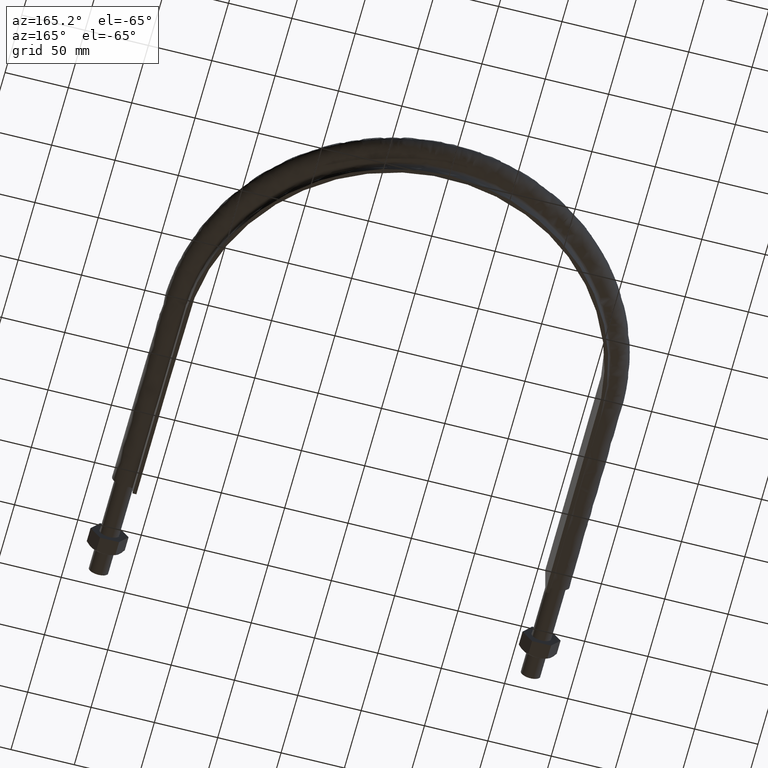
[diagram: clean part render]
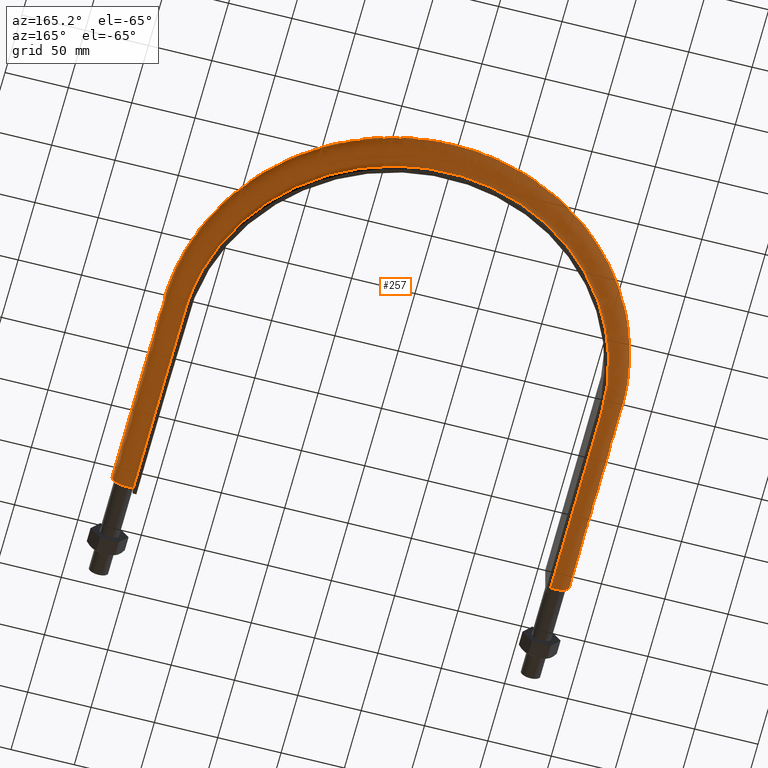
[diagram: same view with one face highlighted and labeled with its STEP entity id]
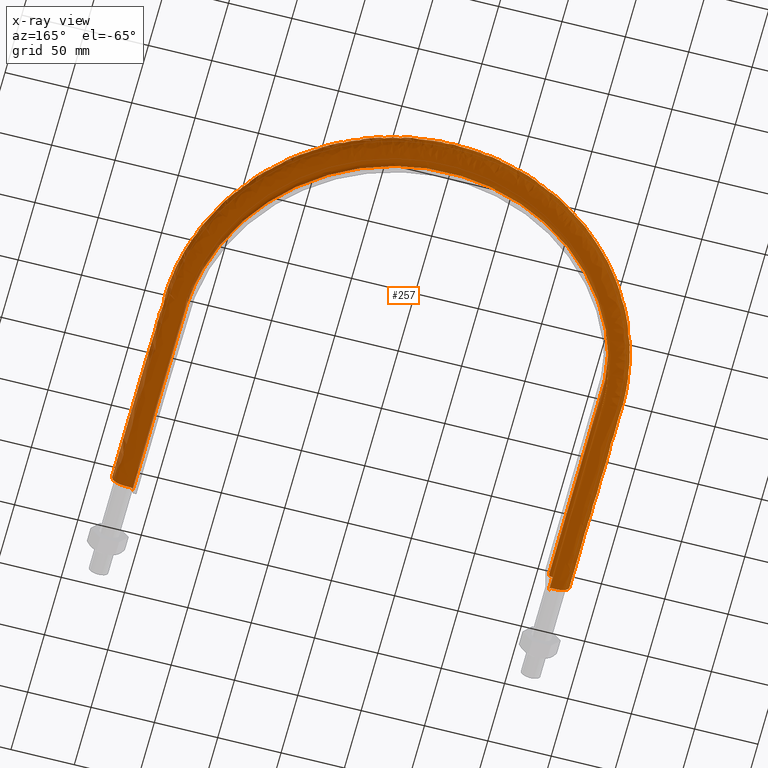
[diagram: x-ray of the same camera — body ghosted, the highlighted face saturated]
A machine part, auxiliary view. The second image highlights one B-rep face of the part: STEP entity #257.
The next image is the same camera in x-ray: the body ghosted, the highlighted face saturated — about 0% of this face is hidden behind the body in this view.
In plain terms, the highlighted face is a freeform B-spline surface patch.
Its self-contained STEP definition (entity closure, byte-faithful):
#257 = ADVANCED_FACE( '', ( #355 ), #356, .F. );
#355 = FACE_OUTER_BOUND( '', #852, .T. );
#356 = B_SPLINE_SURFACE_WITH_KNOTS( '', 3, 3, ( ( #853, #854, #855, #856, #857, #858, #859, #860, #861, #862, #863, #864, #865, #866, #867, #868, #869, #870 ), ( #871, #872, #873, #874, #875, #876, #877, #878, #879, #880, #881, #882, #883, #884, #885, #886, #887, #888 ), ( #889, #890, #891, #892, #893, #894, #895, #896, #897, #898, #899, #900, #901, #902, #903, #904, #905, #906 ), ( #907, #908, #909, #910, #911, #912, #913, #914, #915, #916, #917, #918, #919, #920, #921, #922, #923, #924 ), ( #925, #926, #927, #928, #929, #930, #931, #932, #933, #934, #935, #936, #937, #938, #939, #940, #941, #942 ), ( #943, #944, #945, #946, #947, #948, #949, #950, #951, #952, #953, #954, #955, #956, #957, #958, #959, #960 ), ( #961, #962, #963, #964, #965, #966, #967, #968, #969, #970, #971, #972, #973, #974, #975, #976, #977, #978 ), ( #979, #980, #981, #982, #983, #984, #985, #986, #987, #988, #989, #990, #991, #992, #993, #994, #995, #996 ), ( #997, #998, #999, #1000, #1001, #1002, #1003, #1004, #1005, #1006, #1007, #1008, #1009, #1010, #1011, #1012, #1013, #1014 ), ( #1015, #1016, #1017, #1018, #1019, #1020, #1021, #1022, #1023, #1024, #1025, #1026, #1027, #1028, #1029, #1030, #1031, #1032 ), ( #1033, #1034, #1035, #1036, #1037, #1038, #1039, #1040, #1041, #1042, #1043, #1044, #1045, #1046, #1047, #1048, #1049, #1050 ), ( #1051, #1052, #1053, #1054, #1055, #1056, #1057, #1058, #1059, #1060, #1061, #1062, #1063, #1064, #1065, #1066, #1067, #1068 ), ( #1069, #1070, #1071, #1072, #1073, #1074, #1075, #1076, #1077, #1078, #1079, #1080, #1081, #1082, #1083, #1084, #1085, #1086 ), ( #1087, #1088, #1089, #1090, #1091, #1092, #1093, #1094, #1095, #1096, #1097, #1098, #1099, #1100, #1101, #1102, #1103, #1104 ), ( #1105, #1106, #1107, #1108, #1109, #1110, #1111, #1112, #1113, #1114, #1115, #1116, #1117, #1118, #1119, #1120, #1121, #1122 ), ( #1123, #1124, #1125, #1126, #1127, #1128, #1129, #1130, #1131, #1132, #1133, #1134, #1135, #1136, #1137, #1138, #1139, #1140 ), ( #1141, #1142, #1143, #1144, #1145, #1146, #1147, #1148, #1149, #1150, #1151, #1152, #1153, #1154, #1155, #1156, #1157, #1158 ), ( #1159, #1160, #1161, #1162, #1163, #1164, #1165, #1166, #1167, #1168, #1169, #1170, #1171, #1172, #1173, #1174, #1175, #1176 ), ( #1177, #1178, #1179, #1180, #1181, #1182, #1183, #1184, #1185, #1186, #1187, #1188, #1189, #1190, #1191, #1192, #1193, #1194 ), ( #1195, #1196, #1197, #1198, #1199, #1200, #1201, #1202, #1203, #1204, #1205, #1206, #1207, #1208, #1209, #1210, #1211, #1212 ), ( #1213, #1214, #1215, #1216, #1217, #1218, #1219, #1220, #1221, #1222, #1223, #1224, #1225, #1226, #1227, #1228, #1229, #1230 ), ( #1231, #1232, #1233, #1234, #1235, #1236, #1237, #1238, #1239, #1240, #1241, #1242, #1243, #1244, #1245, #1246, #1247, #1248 ), ( #1249, #1250, #1251, #1252, #1253, #1254, #1255, #1256, #1257, #1258, #1259, #1260, #1261, #1262, #1263, #1264, #1265, #1266 ), ( #1267, #1268, #1269, #1270, #1271, #1272, #1273, #1274, #1275, #1276, #1277, #1278, #1279, #1280, #1281, #1282, #1283, #1284 ), ( #1285, #1286, #1287, #1288, #1289, #1290, #1291, #1292, #1293, #1294, #1295, #1296, #1297, #1298, #1299, #1300, #1301, #1302 ), ( #1303, #1304, #1305, #1306, #1307, #1308, #1309, #1310, #1311, #1312, #1313, #1314, #1315, #1316, #1317, #1318, #1319, #1320 ), ( #1321, #1322, #1323, #1324, #1325, #1326, #1327, #1328, #1329, #1330, #1331, #1332, #1333, #1334, #1335, #1336, #1337, #1338 ), ( #1339, #1340, #1341, #1342, #1343, #1344, #1345, #1346, #1347, #1348, #1349, #1350, #1351, #1352, #1353, #1354, #1355, #1356 ), ( #1357, #1358, #1359, #1360, #1361, #1362, #1363, #1364, #1365, #1366, #1367, #1368, #1369, #1370, #1371, #1372, #1373, #1374 ), ( #1375, #1376, #1377, #1378, #1379, #1380, #1381, #1382, #1383, #1384, #1385, #1386, #1387, #1388, #1389, #1390, #1391, #1392 ), ( #1393, #1394, #1395, #1396, #1397, #1398, #1399, #1400, #1401, #1402, #1403, #1404, #1405, #1406, #1407, #1408, #1409, #1410 ), ( #1411, #1412, #1413, #1414, #1415, #1416, #1417, #1418, #1419, #1420, #1421, #1422, #1423, #1424, #1425, #1426, #1427, #1428 ) ), .UNSPECIFIED., .F., .F., .F., ( 4, 3, 1, 1, 1, 3, 3, 1, 1, 1, 1, 3, 3, 1, 1, 1, 3, 4 ), ( 4, 3, 1, 1, 1, 1, 1, 1, 1, 1, 3, 4 ), ( 0.100000000000000, 0.150000000000000, 0.200000000000000, 0.250000000000000, 0.300000000000000, 0.350000000000000, 0.400000000000000, 0.450000000000000, 0.500000000000000, 0.550000000000000, 0.600000000000000, 0.650000000000000, 0.700000000000000, 0.750000000000000, 0.800000000000000, 0.850000000000000, 0.900000000000000, 0.950000000000000 ), ( 0.000000000000000, 1.00000000000000, 2.00000000000000, 3.00000000000000, 4.00000000000000, 5.00000000000000, 6.00000000000000, 7.00000000000000, 8.00000000000000, 9.00000000000000, 10.0000000000000, 11.0000000000000 ), .UNSPECIFIED. );
#852 = EDGE_LOOP( '', ( #1905, #1906, #1907, #1908 ) );
#853 = CARTESIAN_POINT( '', ( 164.400000000000, 78.5100000000000, -20.0000000000000 ) );
#854 = CARTESIAN_POINT( '', ( 164.400000000000, 130.543333333333, -20.0000000000000 ) );
#855 = CARTESIAN_POINT( '', ( 164.400000000000, 182.576666666667, -20.0000000000000 ) );
#856 = CARTESIAN_POINT( '', ( 164.400000000000, 234.610000000000, -20.0000000000000 ) );
#857 = CARTESIAN_POINT( '', ( 164.400000000000, 253.729852554832, -20.0000000000000 ) );
#858 = CARTESIAN_POINT( '', ( 157.654714406062, 291.995036543922, -20.0000000000000 ) );
#859 = CARTESIAN_POINT( '', ( 128.521300722004, 342.451262640467, -20.0000000000000 ) );
#860 = CARTESIAN_POINT( '', ( 83.8863213984847, 379.905611089014, -20.0000000000000 ) );
#861 = CARTESIAN_POINT( '', ( 29.1334136840586, 399.833751296446, -20.0000000000000 ) );
#862 = CARTESIAN_POINT( '', ( -29.1334136840584, 399.833751296446, -20.0000000000000 ) );
#863 = CARTESIAN_POINT( '', ( -83.8863213984845, 379.905611089015, -20.0000000000000 ) );
#864 = CARTESIAN_POINT( '', ( -128.521300722003, 342.451262640467, -20.0000000000001 ) );
#865 = CARTESIAN_POINT( '', ( -157.654714406062, 291.995036543922, -20.0000000000000 ) );
#866 = CARTESIAN_POINT( '', ( -164.400000000000, 253.729852554832, -20.0000000000000 ) );
#867 = CARTESIAN_POINT( '', ( -164.400000000000, 234.610000000000, -20.0000000000000 ) );
#868 = CARTESIAN_POINT( '', ( -164.400000000000, 182.576666666667, -20.0000000000000 ) );
#869 = CARTESIAN_POINT( '', ( -164.400000000000, 130.543333333333, -20.0000000000000 ) );
#870 = CARTESIAN_POINT( '', ( -164.400000000000, 78.5100000000001, -20.0000000000000 ) );
#871 = CARTESIAN_POINT( '', ( 164.400000000000, 78.5100000000000, -17.3666666666667 ) );
#872 = CARTESIAN_POINT( '', ( 164.400000000000, 130.543333333333, -17.3666666666667 ) );
#873 = CARTESIAN_POINT( '', ( 164.400000000000, 182.576666666667, -17.3666666666667 ) );
#874 = CARTESIAN_POINT( '', ( 164.400000000000, 234.610000000000, -17.3666666666667 ) );
#875 = CARTESIAN_POINT( '', ( 164.400000000000, 253.729852554832, -17.3666666666667 ) );
#876 = CARTESIAN_POINT( '', ( 157.654714406062, 291.995036543922, -17.3666666666667 ) );
#877 = CARTESIAN_POINT( '', ( 128.521300722004, 342.451262640467, -17.3666666666667 ) );
#878 = CARTESIAN_POINT( '', ( 83.8863213984847, 379.905611089014, -17.3666666666667 ) );
#879 = CARTESIAN_POINT( '', ( 29.1334136840586, 399.833751296446, -17.3666666666667 ) );
#880 = CARTESIAN_POINT( '', ( -29.1334136840584, 399.833751296446, -17.3666666666667 ) );
#881 = CARTESIAN_POINT( '', ( -83.8863213984845, 379.905611089015, -17.3666666666667 ) );
#882 = CARTESIAN_POINT( '', ( -128.521300722003, 342.451262640467, -17.3666666666667 ) );
#883 = CARTESIAN_POINT( '', ( -157.654714406062, 291.995036543922, -17.3666666666667 ) );
#884 = CARTESIAN_POINT( '', ( -164.400000000000, 253.729852554832, -17.3666666666667 ) );
#885 = CARTESIAN_POINT( '', ( -164.400000000000, 234.610000000000, -17.3666666666667 ) );
#886 = CARTESIAN_POINT( '', ( -164.400000000000, 182.576666666667, -17.3666666666667 ) );
#887 = CARTESIAN_POINT( '', ( -164.400000000000, 130.543333333333, -17.3666666666667 ) );
#888 = CARTESIAN_POINT( '', ( -164.400000000000, 78.5100000000001, -17.3666666666667 ) );
#889 = CARTESIAN_POINT( '', ( 164.400000000000, 78.5100000000000, -14.7333333333333 ) );
#890 = CARTESIAN_POINT( '', ( 164.400000000000, 130.543333333333, -14.7333333333333 ) );
#891 = CARTESIAN_POINT( '', ( 164.400000000000, 182.576666666667, -14.7333333333333 ) );
#892 = CARTESIAN_POINT( '', ( 164.400000000000, 234.610000000000, -14.7333333333333 ) );
#893 = CARTESIAN_POINT( '', ( 164.400000000000, 253.729852554832, -14.7333333333333 ) );
#894 = CARTESIAN_POINT( '', ( 157.654714406062, 291.995036543922, -14.7333333333333 ) );
#895 = CARTESIAN_POINT( '', ( 128.521300722004, 342.451262640467, -14.7333333333333 ) );
#896 = CARTESIAN_POINT( '', ( 83.8863213984847, 379.905611089014, -14.7333333333333 ) );
#897 = CARTESIAN_POINT( '', ( 29.1334136840586, 399.833751296446, -14.7333333333333 ) );
#898 = CARTESIAN_POINT( '', ( -29.1334136840584, 399.833751296446, -14.7333333333333 ) );
#899 = CARTESIAN_POINT( '', ( -83.8863213984845, 379.905611089015, -14.7333333333333 ) );
#900 = CARTESIAN_POINT( '', ( -128.521300722003, 342.451262640467, -14.7333333333334 ) );
#901 = CARTESIAN_POINT( '', ( -157.654714406062, 291.995036543922, -14.7333333333333 ) );
#902 = CARTESIAN_POINT( '', ( -164.400000000000, 253.729852554832, -14.7333333333333 ) );
#903 = CARTESIAN_POINT( '', ( -164.400000000000, 234.610000000000, -14.7333333333333 ) );
#904 = CARTESIAN_POINT( '', ( -164.400000000000, 182.576666666667, -14.7333333333333 ) );
#905 = CARTESIAN_POINT( '', ( -164.400000000000, 130.543333333333, -14.7333333333333 ) );
#906 = CARTESIAN_POINT( '', ( -164.400000000000, 78.5100000000001, -14.7333333333333 ) );
#907 = CARTESIAN_POINT( '', ( 164.400000000000, 78.5100000000000, -12.1000000000000 ) );
#908 = CARTESIAN_POINT( '', ( 164.400000000000, 130.543333333333, -12.1000000000000 ) );
#909 = CARTESIAN_POINT( '', ( 164.400000000000, 182.576666666667, -12.1000000000000 ) );
#910 = CARTESIAN_POINT( '', ( 164.400000000000, 234.610000000000, -12.1000000000000 ) );
#911 = CARTESIAN_POINT( '', ( 164.400000000000, 253.729852554832, -12.1000000000000 ) );
#912 = CARTESIAN_POINT( '', ( 157.654714406062, 291.995036543922, -12.1000000000000 ) );
#913 = CARTESIAN_POINT( '', ( 128.521300722003, 342.451262640467, -12.1000000000000 ) );
#914 = CARTESIAN_POINT( '', ( 83.8863213984847, 379.905611089014, -12.1000000000000 ) );
#915 = CARTESIAN_POINT( '', ( 29.1334136840586, 399.833751296446, -12.1000000000000 ) );
#916 = CARTESIAN_POINT( '', ( -29.1334136840584, 399.833751296446, -12.1000000000000 ) );
#917 = CARTESIAN_POINT( '', ( -83.8863213984845, 379.905611089015, -12.1000000000000 ) );
#918 = CARTESIAN_POINT( '', ( -128.521300722003, 342.451262640467, -12.1000000000000 ) );
#919 = CARTESIAN_POINT( '', ( -157.654714406062, 291.995036543922, -12.1000000000000 ) );
#920 = CARTESIAN_POINT( '', ( -164.400000000000, 253.729852554832, -12.1000000000000 ) );
#921 = CARTESIAN_POINT( '', ( -164.400000000000, 234.610000000000, -12.1000000000000 ) );
#922 = CARTESIAN_POINT( '', ( -164.400000000000, 182.576666666667, -12.1000000000000 ) );
#923 = CARTESIAN_POINT( '', ( -164.400000000000, 130.543333333333, -12.1000000000000 ) );
#924 = CARTESIAN_POINT( '', ( -164.400000000000, 78.5100000000001, -12.1000000000000 ) );
#925 = CARTESIAN_POINT( '', ( 164.400000000000, 78.5100000000000, -11.8382358417233 ) );
#926 = CARTESIAN_POINT( '', ( 164.400000000000, 130.543333333333, -11.8382358417233 ) );
#927 = CARTESIAN_POINT( '', ( 164.400000000000, 182.576666666667, -11.8382358417233 ) );
#928 = CARTESIAN_POINT( '', ( 164.400000000000, 234.610000000000, -11.8382358417233 ) );
#929 = CARTESIAN_POINT( '', ( 164.400000000000, 253.729852554832, -11.8382358417233 ) );
#930 = CARTESIAN_POINT( '', ( 157.654714406062, 291.995036543922, -11.8382358417233 ) );
#931 = CARTESIAN_POINT( '', ( 128.521300722003, 342.451262640467, -11.8382358417233 ) );
#932 = CARTESIAN_POINT( '', ( 83.8863213984847, 379.905611089014, -11.8382358417233 ) );
#933 = CARTESIAN_POINT( '', ( 29.1334136840586, 399.833751296446, -11.8382358417233 ) );
#934 = CARTESIAN_POINT( '', ( -29.1334136840584, 399.833751296446, -11.8382358417233 ) );
#935 = CARTESIAN_POINT( '', ( -83.8863213984845, 379.905611089015, -11.8382358417233 ) );
#936 = CARTESIAN_POINT( '', ( -128.521300722003, 342.451262640467, -11.8382358417233 ) );
#937 = CARTESIAN_POINT( '', ( -157.654714406062, 291.995036543922, -11.8382358417233 ) );
#938 = CARTESIAN_POINT( '', ( -164.400000000000, 253.729852554832, -11.8382358417233 ) );
#939 = CARTESIAN_POINT( '', ( -164.400000000000, 234.610000000000, -11.8382358417233 ) );
#940 = CARTESIAN_POINT( '', ( -164.400000000000, 182.576666666667, -11.8382358417233 ) );
#941 = CARTESIAN_POINT( '', ( -164.400000000000, 130.543333333333, -11.8382358417233 ) );
#942 = CARTESIAN_POINT( '', ( -164.400000000000, 78.5100000000001, -11.8382358417233 ) );
#943 = CARTESIAN_POINT( '', ( 164.504136256836, 78.5100000000000, -11.3147075251700 ) );
#944 = CARTESIAN_POINT( '', ( 164.504136256836, 130.543333333333, -11.3147075251700 ) );
#945 = CARTESIAN_POINT( '', ( 164.504136256836, 182.576666666667, -11.3147075251700 ) );
#946 = CARTESIAN_POINT( '', ( 164.504136256836, 234.610000000000, -11.3147075251700 ) );
#947 = CARTESIAN_POINT( '', ( 164.504136256836, 253.742093909332, -11.3147075251700 ) );
#948 = CARTESIAN_POINT( '', ( 157.754577981675, 292.031325644286, -11.3147075251700 ) );
#949 = CARTESIAN_POINT( '', ( 128.602710254734, 342.519588942373, -11.3147075251700 ) );
#950 = CARTESIAN_POINT( '', ( 83.9394576972084, 379.997641754704, -11.3147075251700 ) );
#951 = CARTESIAN_POINT( '', ( 29.1518677269413, 399.938410195030, -11.3147075251700 ) );
#952 = CARTESIAN_POINT( '', ( -29.1518677269410, 399.938410195030, -11.3147075251700 ) );
#953 = CARTESIAN_POINT( '', ( -83.9394576972082, 379.997641754704, -11.3147075251700 ) );
#954 = CARTESIAN_POINT( '', ( -128.602710254734, 342.519588942373, -11.3147075251700 ) );
#955 = CARTESIAN_POINT( '', ( -157.754577981675, 292.031325644285, -11.3147075251700 ) );
#956 = CARTESIAN_POINT( '', ( -164.504136256836, 253.742093909332, -11.3147075251700 ) );
#957 = CARTESIAN_POINT( '', ( -164.504136256836, 234.610000000000, -11.3147075251700 ) );
#958 = CARTESIAN_POINT( '', ( -164.504136256836, 182.576666666667, -11.3147075251700 ) );
#959 = CARTESIAN_POINT( '', ( -164.504136256836, 130.543333333333, -11.3147075251700 ) );
#960 = CARTESIAN_POINT( '', ( -164.504136256836, 78.5100000000001, -11.3147075251700 ) );
#961 = CARTESIAN_POINT( '', ( 164.948968710939, 78.5100000000000, -10.6489687109389 ) );
#962 = CARTESIAN_POINT( '', ( 164.948968710939, 130.543333333333, -10.6489687109389 ) );
#963 = CARTESIAN_POINT( '', ( 164.948968710939, 182.576666666667, -10.6489687109389 ) );
#964 = CARTESIAN_POINT( '', ( 164.948968710939, 234.610000000000, -10.6489687109389 ) );
#965 = CARTESIAN_POINT( '', ( 164.948968710939, 253.794384551701, -10.6489687109389 ) );
#966 = CARTESIAN_POINT( '', ( 158.181159085751, 292.186339566070, -10.6489687109389 ) );
#967 = CARTESIAN_POINT( '', ( 128.950462356952, 342.811454210824, -10.6489687109389 ) );
#968 = CARTESIAN_POINT( '', ( 84.1664367617665, 380.390763498421, -10.6489687109389 ) );
#969 = CARTESIAN_POINT( '', ( 29.2306967287994, 400.385475185797, -10.6489687109389 ) );
#970 = CARTESIAN_POINT( '', ( -29.2306967287992, 400.385475185797, -10.6489687109389 ) );
#971 = CARTESIAN_POINT( '', ( -84.1664367617663, 380.390763498421, -10.6489687109389 ) );
#972 = CARTESIAN_POINT( '', ( -128.950462356952, 342.811454210824, -10.6489687109389 ) );
#973 = CARTESIAN_POINT( '', ( -158.181159085751, 292.186339566070, -10.6489687109389 ) );
#974 = CARTESIAN_POINT( '', ( -164.948968710939, 253.794384551701, -10.6489687109389 ) );
#975 = CARTESIAN_POINT( '', ( -164.948968710939, 234.610000000000, -10.6489687109389 ) );
#976 = CARTESIAN_POINT( '', ( -164.948968710939, 182.576666666667, -10.6489687109389 ) );
#977 = CARTESIAN_POINT( '', ( -164.948968710939, 130.543333333333, -10.6489687109389 ) );
#978 = CARTESIAN_POINT( '', ( -164.948968710939, 78.5100000000001, -10.6489687109389 ) );
#979 = CARTESIAN_POINT( '', ( 165.614707525170, 78.5100000000000, -10.2041362568359 ) );
#980 = CARTESIAN_POINT( '', ( 165.614707525170, 130.543333333333, -10.2041362568359 ) );
#981 = CARTESIAN_POINT( '', ( 165.614707525170, 182.576666666667, -10.2041362568359 ) );
#982 = CARTESIAN_POINT( '', ( 165.614707525170, 234.610000000000, -10.2041362568359 ) );
#983 = CARTESIAN_POINT( '', ( 165.614707525170, 253.872643028403, -10.2041362568359 ) );
#984 = CARTESIAN_POINT( '', ( 158.819582824356, 292.418334294706, -10.2041362568359 ) );
#985 = CARTESIAN_POINT( '', ( 129.470910157111, 343.248261453508, -10.2041362568359 ) );
#986 = CARTESIAN_POINT( '', ( 84.5061349377886, 380.979111765497, -10.2041362568359 ) );
#987 = CARTESIAN_POINT( '', ( 29.3486726672454, 401.054555227265, -10.2041362568359 ) );
#988 = CARTESIAN_POINT( '', ( -29.3486726672452, 401.054555227265, -10.2041362568359 ) );
#989 = CARTESIAN_POINT( '', ( -84.5061349377885, 380.979111765497, -10.2041362568359 ) );
#990 = CARTESIAN_POINT( '', ( -129.470910157111, 343.248261453508, -10.2041362568359 ) );
#991 = CARTESIAN_POINT( '', ( -158.819582824356, 292.418334294706, -10.2041362568359 ) );
#992 = CARTESIAN_POINT( '', ( -165.614707525170, 253.872643028404, -10.2041362568359 ) );
#993 = CARTESIAN_POINT( '', ( -165.614707525170, 234.610000000000, -10.2041362568359 ) );
#994 = CARTESIAN_POINT( '', ( -165.614707525170, 182.576666666667, -10.2041362568359 ) );
#995 = CARTESIAN_POINT( '', ( -165.614707525170, 130.543333333333, -10.2041362568359 ) );
#996 = CARTESIAN_POINT( '', ( -165.614707525170, 78.5100000000001, -10.2041362568359 ) );
#997 = CARTESIAN_POINT( '', ( 166.138235841723, 78.5100000000000, -10.1000000000000 ) );
#998 = CARTESIAN_POINT( '', ( 166.138235841723, 130.543333333333, -10.1000000000000 ) );
#999 = CARTESIAN_POINT( '', ( 166.138235841723, 182.576666666667, -10.1000000000000 ) );
#1000 = CARTESIAN_POINT( '', ( 166.138235841723, 234.610000000000, -10.1000000000000 ) );
#1001 = CARTESIAN_POINT( '', ( 166.138235841723, 253.934184473319, -10.1000000000000 ) );
#1002 = CARTESIAN_POINT( '', ( 159.321630921861, 292.600771922100, -10.1000000000000 ) );
#1003 = CARTESIAN_POINT( '', ( 129.880183516042, 343.591760969434, -10.1000000000000 ) );
#1004 = CARTESIAN_POINT( '', ( 84.7732691508276, 381.441781165606, -10.1000000000000 ) );
#1005 = CARTESIAN_POINT( '', ( 29.4414474058188, 401.580711041319, -10.1000000000000 ) );
#1006 = CARTESIAN_POINT( '', ( -29.4414474058186, 401.580711041319, -10.1000000000000 ) );
#1007 = CARTESIAN_POINT( '', ( -84.7732691508274, 381.441781165606, -10.1000000000000 ) );
#1008 = CARTESIAN_POINT( '', ( -129.880183516042, 343.591760969434, -10.1000000000000 ) );
#1009 = CARTESIAN_POINT( '', ( -159.321630921860, 292.600771922100, -10.1000000000000 ) );
#1010 = CARTESIAN_POINT( '', ( -166.138235841723, 253.934184473319, -10.1000000000000 ) );
#1011 = CARTESIAN_POINT( '', ( -166.138235841723, 234.610000000000, -10.1000000000000 ) );
#1012 = CARTESIAN_POINT( '', ( -166.138235841723, 182.576666666667, -10.1000000000000 ) );
#1013 = CARTESIAN_POINT( '', ( -166.138235841723, 130.543333333333, -10.1000000000000 ) );
#1014 = CARTESIAN_POINT( '', ( -166.138235841723, 78.5100000000001, -10.1000000000000 ) );
#1015 = CARTESIAN_POINT( '', ( 166.400000000000, 78.5100000000000, -10.1000000000000 ) );
#1016 = CARTESIAN_POINT( '', ( 166.400000000000, 130.543333333333, -10.1000000000000 ) );
#1017 = CARTESIAN_POINT( '', ( 166.400000000000, 182.576666666667, -10.1000000000000 ) );
#1018 = CARTESIAN_POINT( '', ( 166.400000000000, 234.610000000000, -10.1000000000000 ) );
#1019 = CARTESIAN_POINT( '', ( 166.400000000000, 253.964955195777, -10.1000000000000 ) );
#1020 = CARTESIAN_POINT( '', ( 159.572654970613, 292.691990735796, -10.1000000000000 ) );
#1021 = CARTESIAN_POINT( '', ( 130.084820195507, 343.763510727396, -10.1000000000000 ) );
#1022 = CARTESIAN_POINT( '', ( 84.9068362573470, 381.673115865660, -10.1000000000000 ) );
#1023 = CARTESIAN_POINT( '', ( 29.4878347751055, 401.843788948346, -10.1000000000000 ) );
#1024 = CARTESIAN_POINT( '', ( -29.4878347751053, 401.843788948346, -10.1000000000000 ) );
#1025 = CARTESIAN_POINT( '', ( -84.9068362573468, 381.673115865661, -10.1000000000000 ) );
#1026 = CARTESIAN_POINT( '', ( -130.084820195507, 343.763510727396, -10.1000000000000 ) );
#1027 = CARTESIAN_POINT( '', ( -159.572654970613, 292.691990735796, -10.1000000000000 ) );
#1028 = CARTESIAN_POINT( '', ( -166.400000000000, 253.964955195777, -10.1000000000000 ) );
#1029 = CARTESIAN_POINT( '', ( -166.400000000000, 234.610000000000, -10.1000000000000 ) );
#1030 = CARTESIAN_POINT( '', ( -166.400000000000, 182.576666666667, -10.1000000000000 ) );
#1031 = CARTESIAN_POINT( '', ( -166.400000000000, 130.543333333333, -10.1000000000000 ) );
#1032 = CARTESIAN_POINT( '', ( -166.400000000000, 78.5100000000001, -10.1000000000000 ) );
#1033 = CARTESIAN_POINT( '', ( 167.766666666667, 78.5100000000000, -10.1000000000000 ) );
#1034 = CARTESIAN_POINT( '', ( 167.766666666667, 130.543333333333, -10.1000000000000 ) );
#1035 = CARTESIAN_POINT( '', ( 167.766666666667, 182.576666666667, -10.1000000000000 ) );
#1036 = CARTESIAN_POINT( '', ( 167.766666666667, 234.610000000000, -10.1000000000000 ) );
#1037 = CARTESIAN_POINT( '', ( 167.766666666667, 254.125608667089, -10.1000000000000 ) );
#1038 = CARTESIAN_POINT( '', ( 160.883247689722, 293.168242766911, -10.1000000000000 ) );
#1039 = CARTESIAN_POINT( '', ( 131.153225169068, 344.660213586798, -10.1000000000000 ) );
#1040 = CARTESIAN_POINT( '', ( 85.6041880775696, 382.880910796368, -10.1000000000000 ) );
#1041 = CARTESIAN_POINT( '', ( 29.7300225206543, 403.217314677144, -10.1000000000000 ) );
#1042 = CARTESIAN_POINT( '', ( -29.7300225206541, 403.217314677144, -10.1000000000000 ) );
#1043 = CARTESIAN_POINT( '', ( -85.6041880775694, 382.880910796369, -10.1000000000000 ) );
#1044 = CARTESIAN_POINT( '', ( -131.153225169068, 344.660213586798, -10.1000000000000 ) );
#1045 = CARTESIAN_POINT( '', ( -160.883247689722, 293.168242766911, -10.1000000000000 ) );
#1046 = CARTESIAN_POINT( '', ( -167.766666666667, 254.125608667089, -10.1000000000000 ) );
#1047 = CARTESIAN_POINT( '', ( -167.766666666667, 234.610000000000, -10.1000000000000 ) );
#1048 = CARTESIAN_POINT( '', ( -167.766666666667, 182.576666666667, -10.1000000000000 ) );
#1049 = CARTESIAN_POINT( '', ( -167.766666666667, 130.543333333333, -10.1000000000000 ) );
#1050 = CARTESIAN_POINT( '', ( -167.766666666667, 78.5100000000001, -10.1000000000000 ) );
#1051 = CARTESIAN_POINT( '', ( 169.133333333333, 78.5100000000000, -10.1000000000000 ) );
#1052 = CARTESIAN_POINT( '', ( 169.133333333333, 130.543333333333, -10.1000000000000 ) );
#1053 = CARTESIAN_POINT( '', ( 169.133333333333, 182.576666666667, -10.1000000000000 ) );
#1054 = CARTESIAN_POINT( '', ( 169.133333333333, 234.610000000000, -10.1000000000000 ) );
#1055 = CARTESIAN_POINT( '', ( 169.133333333333, 254.286262138401, -10.1000000000000 ) );
#1056 = CARTESIAN_POINT( '', ( 162.193840408832, 293.644494798025, -10.1000000000000 ) );
#1057 = CARTESIAN_POINT( '', ( 132.221630142629, 345.556916446200, -10.1000000000000 ) );
#1058 = CARTESIAN_POINT( '', ( 86.3015398977922, 384.088705727076, -10.1000000000000 ) );
#1059 = CARTESIAN_POINT( '', ( 29.9722102662030, 404.590840405943, -10.1000000000000 ) );
#1060 = CARTESIAN_POINT( '', ( -29.9722102662028, 404.590840405943, -10.1000000000000 ) );
#1061 = CARTESIAN_POINT( '', ( -86.3015398977920, 384.088705727077, -10.1000000000000 ) );
#1062 = CARTESIAN_POINT( '', ( -132.221630142629, 345.556916446200, -10.1000000000000 ) );
#1063 = CARTESIAN_POINT( '', ( -162.193840408832, 293.644494798025, -10.1000000000000 ) );
#1064 = CARTESIAN_POINT( '', ( -169.133333333333, 254.286262138401, -10.1000000000000 ) );
#1065 = CARTESIAN_POINT( '', ( -169.133333333333, 234.610000000000, -10.1000000000000 ) );
#1066 = CARTESIAN_POINT( '', ( -169.133333333333, 182.576666666667, -10.1000000000000 ) );
#1067 = CARTESIAN_POINT( '', ( -169.133333333333, 130.543333333333, -10.1000000000000 ) );
#1068 = CARTESIAN_POINT( '', ( -169.133333333333, 78.5100000000001, -10.1000000000000 ) );
#1069 = CARTESIAN_POINT( '', ( 170.500000000000, 78.5100000000000, -10.1000000000000 ) );
#1070 = CARTESIAN_POINT( '', ( 170.500000000000, 130.543333333333, -10.1000000000000 ) );
#1071 = CARTESIAN_POINT( '', ( 170.500000000000, 182.576666666667, -10.1000000000000 ) );
#1072 = CARTESIAN_POINT( '', ( 170.500000000000, 234.610000000000, -10.1000000000000 ) );
#1073 = CARTESIAN_POINT( '', ( 170.500000000000, 254.446915609713, -10.1000000000000 ) );
#1074 = CARTESIAN_POINT( '', ( 163.504433127941, 294.120746829140, -10.1000000000000 ) );
#1075 = CARTESIAN_POINT( '', ( 133.290035116190, 346.453619305602, -10.1000000000000 ) );
#1076 = CARTESIAN_POINT( '', ( 86.9988917180148, 385.296500657785, -10.1000000000000 ) );
#1077 = CARTESIAN_POINT( '', ( 30.2143980117518, 405.964366134741, -10.1000000000000 ) );
#1078 = CARTESIAN_POINT( '', ( -30.2143980117516, 405.964366134741, -10.1000000000000 ) );
#1079 = CARTESIAN_POINT( '', ( -86.9988917180146, 385.296500657785, -10.1000000000000 ) );
#1080 = CARTESIAN_POINT( '', ( -133.290035116190, 346.453619305602, -10.1000000000000 ) );
#1081 = CARTESIAN_POINT( '', ( -163.504433127941, 294.120746829139, -10.1000000000000 ) );
#1082 = CARTESIAN_POINT( '', ( -170.500000000000, 254.446915609713, -10.1000000000000 ) );
#1083 = CARTESIAN_POINT( '', ( -170.500000000000, 234.610000000000, -10.1000000000000 ) );
#1084 = CARTESIAN_POINT( '', ( -170.500000000000, 182.576666666667, -10.1000000000000 ) );
#1085 = CARTESIAN_POINT( '', ( -170.500000000000, 130.543333333333, -10.1000000000000 ) );
#1086 = CARTESIAN_POINT( '', ( -170.500000000000, 78.5100000000001, -10.1000000000000 ) );
#1087 = CARTESIAN_POINT( '', ( 172.613419413283, 78.5100000000000, -10.1000000000000 ) );
#1088 = CARTESIAN_POINT( '', ( 172.613419413283, 130.543333333333, -10.1000000000000 ) );
#1089 = CARTESIAN_POINT( '', ( 172.613419413283, 182.576666666667, -10.1000000000000 ) );
#1090 = CARTESIAN_POINT( '', ( 172.613419413283, 234.610000000000, -10.1000000000000 ) );
#1091 = CARTESIAN_POINT( '', ( 172.613419413283, 254.695350852456, -10.1000000000000 ) );
#1092 = CARTESIAN_POINT( '', ( 165.531139539264, 294.857225088778, -10.1000000000000 ) );
#1093 = CARTESIAN_POINT( '', ( 134.942221320364, 347.840284596582, -10.1000000000000 ) );
#1094 = CARTESIAN_POINT( '', ( 88.0772796751465, 387.164240111802, -10.1000000000000 ) );
#1095 = CARTESIAN_POINT( '', ( 30.5889182188996, 408.088392432219, -10.1000000000000 ) );
#1096 = CARTESIAN_POINT( '', ( -30.5889182188993, 408.088392432219, -10.1000000000000 ) );
#1097 = CARTESIAN_POINT( '', ( -88.0772796751464, 387.164240111802, -10.1000000000000 ) );
#1098 = CARTESIAN_POINT( '', ( -134.942221320364, 347.840284596582, -10.1000000000000 ) );
#1099 = CARTESIAN_POINT( '', ( -165.531139539264, 294.857225088778, -10.1000000000000 ) );
#1100 = CARTESIAN_POINT( '', ( -172.613419413283, 254.695350852456, -10.1000000000000 ) );
#1101 = CARTESIAN_POINT( '', ( -172.613419413283, 234.610000000000, -10.1000000000000 ) );
#1102 = CARTESIAN_POINT( '', ( -172.613419413283, 182.576666666667, -10.1000000000000 ) );
#1103 = CARTESIAN_POINT( '', ( -172.613419413283, 130.543333333333, -10.1000000000000 ) );
#1104 = CARTESIAN_POINT( '', ( -172.613419413283, 78.5100000000001, -10.1000000000000 ) );
#1105 = CARTESIAN_POINT( '', ( 176.840258239849, 78.5100000000000, -8.72661681244669 ) );
#1106 = CARTESIAN_POINT( '', ( 176.840258239849, 130.543333333333, -8.72661681244669 ) );
#1107 = CARTESIAN_POINT( '', ( 176.840258239849, 182.576666666667, -8.72661681244669 ) );
#1108 = CARTESIAN_POINT( '', ( 176.840258239849, 234.610000000000, -8.72661681244669 ) );
#1109 = CARTESIAN_POINT( '', ( 176.840258239849, 255.192221337943, -8.72661681244669 ) );
#1110 = CARTESIAN_POINT( '', ( 169.584552361908, 296.330181608055, -8.72661681244669 ) );
#1111 = CARTESIAN_POINT( '', ( 138.246593728713, 350.613615178542, -8.72661681244669 ) );
#1112 = CARTESIAN_POINT( '', ( 90.2340555894100, 390.899719019836, -8.72661681244669 ) );
#1113 = CARTESIAN_POINT( '', ( 31.3379586331951, 412.336445027174, -8.72661681244669 ) );
#1114 = CARTESIAN_POINT( '', ( -31.3379586331949, 412.336445027174, -8.72661681244670 ) );
#1115 = CARTESIAN_POINT( '', ( -90.2340555894098, 390.899719019836, -8.72661681244669 ) );
#1116 = CARTESIAN_POINT( '', ( -138.246593728713, 350.613615178542, -8.72661681244670 ) );
#1117 = CARTESIAN_POINT( '', ( -169.584552361908, 296.330181608055, -8.72661681244669 ) );
#1118 = CARTESIAN_POINT( '', ( -176.840258239849, 255.192221337943, -8.72661681244669 ) );
#1119 = CARTESIAN_POINT( '', ( -176.840258239849, 234.610000000000, -8.72661681244669 ) );
#1120 = CARTESIAN_POINT( '', ( -176.840258239849, 182.576666666667, -8.72661681244669 ) );
#1121 = CARTESIAN_POINT( '', ( -176.840258239849, 130.543333333333, -8.72661681244669 ) );
#1122 = CARTESIAN_POINT( '', ( -176.840258239849, 78.5100000000001, -8.72661681244669 ) );
#1123 = CARTESIAN_POINT( '', ( 180.758753329527, 78.5100000000000, -3.33327101555837 ) );
#1124 = CARTESIAN_POINT( '', ( 180.758753329527, 130.543333333333, -3.33327101555837 ) );
#1125 = CARTESIAN_POINT( '', ( 180.758753329527, 182.576666666667, -3.33327101555837 ) );
#1126 = CARTESIAN_POINT( '', ( 180.758753329527, 234.610000000000, -3.33327101555837 ) );
#1127 = CARTESIAN_POINT( '', ( 180.758753329528, 255.652845609999, -3.33327101555837 ) );
#1128 = CARTESIAN_POINT( '', ( 173.342272704151, 297.695687397351, -3.33327101555837 ) );
#1129 = CARTESIAN_POINT( '', ( 141.309915418483, 353.184634021078, -3.33327101555837 ) );
#1130 = CARTESIAN_POINT( '', ( 92.2334968211080, 394.362698413970, -3.33327101555837 ) );
#1131 = CARTESIAN_POINT( '', ( 32.0323572856681, 416.274606361694, -3.33327101555837 ) );
#1132 = CARTESIAN_POINT( '', ( -32.0323572856679, 416.274606361694, -3.33327101555837 ) );
#1133 = CARTESIAN_POINT( '', ( -92.2334968211077, 394.362698413971, -3.33327101555837 ) );
#1134 = CARTESIAN_POINT( '', ( -141.309915418483, 353.184634021078, -3.33327101555838 ) );
#1135 = CARTESIAN_POINT( '', ( -173.342272704151, 297.695687397351, -3.33327101555837 ) );
#1136 = CARTESIAN_POINT( '', ( -180.758753329527, 255.652845609999, -3.33327101555837 ) );
#1137 = CARTESIAN_POINT( '', ( -180.758753329527, 234.610000000000, -3.33327101555837 ) );
#1138 = CARTESIAN_POINT( '', ( -180.758753329527, 182.576666666667, -3.33327101555837 ) );
#1139 = CARTESIAN_POINT( '', ( -180.758753329527, 130.543333333333, -3.33327101555837 ) );
#1140 = CARTESIAN_POINT( '', ( -180.758753329527, 78.5100000000001, -3.33327101555837 ) );
#1141 = CARTESIAN_POINT( '', ( 180.758753329527, 78.5100000000000, 3.33327101555838 ) );
#1142 = CARTESIAN_POINT( '', ( 180.758753329527, 130.543333333333, 3.33327101555838 ) );
#1143 = CARTESIAN_POINT( '', ( 180.758753329527, 182.576666666667, 3.33327101555838 ) );
#1144 = CARTESIAN_POINT( '', ( 180.758753329527, 234.610000000000, 3.33327101555838 ) );
#1145 = CARTESIAN_POINT( '', ( 180.758753329528, 255.652845609999, 3.33327101555838 ) );
#1146 = CARTESIAN_POINT( '', ( 173.342272704151, 297.695687397351, 3.33327101555837 ) );
#1147 = CARTESIAN_POINT( '', ( 141.309915418483, 353.184634021078, 3.33327101555838 ) );
#1148 = CARTESIAN_POINT( '', ( 92.2334968211080, 394.362698413970, 3.33327101555838 ) );
#1149 = CARTESIAN_POINT( '', ( 32.0323572856681, 416.274606361694, 3.33327101555837 ) );
#1150 = CARTESIAN_POINT( '', ( -32.0323572856679, 416.274606361694, 3.33327101555838 ) );
#1151 = CARTESIAN_POINT( '', ( -92.2334968211077, 394.362698413971, 3.33327101555837 ) );
#1152 = CARTESIAN_POINT( '', ( -141.309915418483, 353.184634021078, 3.33327101555838 ) );
#1153 = CARTESIAN_POINT( '', ( -173.342272704151, 297.695687397351, 3.33327101555837 ) );
#1154 = CARTESIAN_POINT( '', ( -180.758753329527, 255.652845609999, 3.33327101555838 ) );
#1155 = CARTESIAN_POINT( '', ( -180.758753329527, 234.610000000000, 3.33327101555838 ) );
#1156 = CARTESIAN_POINT( '', ( -180.758753329527, 182.576666666667, 3.33327101555838 ) );
#1157 = CARTESIAN_POINT( '', ( -180.758753329527, 130.543333333333, 3.33327101555838 ) );
#1158 = CARTESIAN_POINT( '', ( -180.758753329527, 78.5100000000001, 3.33327101555838 ) );
#1159 = CARTESIAN_POINT( '', ( 176.840258239849, 78.5100000000000, 8.72661681244669 ) );
#1160 = CARTESIAN_POINT( '', ( 176.840258239849, 130.543333333333, 8.72661681244669 ) );
#1161 = CARTESIAN_POINT( '', ( 176.840258239849, 182.576666666667, 8.72661681244669 ) );
#1162 = CARTESIAN_POINT( '', ( 176.840258239849, 234.610000000000, 8.72661681244669 ) );
#1163 = CARTESIAN_POINT( '', ( 176.840258239849, 255.192221337943, 8.72661681244669 ) );
#1164 = CARTESIAN_POINT( '', ( 169.584552361908, 296.330181608055, 8.72661681244669 ) );
#1165 = CARTESIAN_POINT( '', ( 138.246593728713, 350.613615178542, 8.72661681244669 ) );
#1166 = CARTESIAN_POINT( '', ( 90.2340555894100, 390.899719019835, 8.72661681244670 ) );
#1167 = CARTESIAN_POINT( '', ( 31.3379586331951, 412.336445027174, 8.72661681244669 ) );
#1168 = CARTESIAN_POINT( '', ( -31.3379586331949, 412.336445027174, 8.72661681244670 ) );
#1169 = CARTESIAN_POINT( '', ( -90.2340555894098, 390.899719019836, 8.72661681244669 ) );
#1170 = CARTESIAN_POINT( '', ( -138.246593728713, 350.613615178542, 8.72661681244671 ) );
#1171 = CARTESIAN_POINT( '', ( -169.584552361908, 296.330181608055, 8.72661681244669 ) );
#1172 = CARTESIAN_POINT( '', ( -176.840258239849, 255.192221337943, 8.72661681244669 ) );
#1173 = CARTESIAN_POINT( '', ( -176.840258239849, 234.610000000000, 8.72661681244669 ) );
#1174 = CARTESIAN_POINT( '', ( -176.840258239849, 182.576666666667, 8.72661681244669 ) );
#1175 = CARTESIAN_POINT( '', ( -176.840258239849, 130.543333333333, 8.72661681244669 ) );
#1176 = CARTESIAN_POINT( '', ( -176.840258239849, 78.5100000000001, 8.72661681244669 ) );
#1177 = CARTESIAN_POINT( '', ( 172.613419413283, 78.5100000000000, 10.1000000000000 ) );
#1178 = CARTESIAN_POINT( '', ( 172.613419413283, 130.543333333333, 10.1000000000000 ) );
#1179 = CARTESIAN_POINT( '', ( 172.613419413283, 182.576666666667, 10.1000000000000 ) );
#1180 = CARTESIAN_POINT( '', ( 172.613419413283, 234.610000000000, 10.1000000000000 ) );
#1181 = CARTESIAN_POINT( '', ( 172.613419413283, 254.695350852456, 10.1000000000000 ) );
#1182 = CARTESIAN_POINT( '', ( 165.531139539264, 294.857225088778, 10.1000000000000 ) );
#1183 = CARTESIAN_POINT( '', ( 134.942221320364, 347.840284596582, 10.1000000000000 ) );
#1184 = CARTESIAN_POINT( '', ( 88.0772796751465, 387.164240111802, 10.1000000000000 ) );
#1185 = CARTESIAN_POINT( '', ( 30.5889182188996, 408.088392432219, 10.1000000000000 ) );
#1186 = CARTESIAN_POINT( '', ( -30.5889182188993, 408.088392432219, 10.1000000000000 ) );
#1187 = CARTESIAN_POINT( '', ( -88.0772796751464, 387.164240111802, 10.1000000000000 ) );
#1188 = CARTESIAN_POINT( '', ( -134.942221320364, 347.840284596582, 10.1000000000000 ) );
#1189 = CARTESIAN_POINT( '', ( -165.531139539264, 294.857225088778, 10.1000000000000 ) );
#1190 = CARTESIAN_POINT( '', ( -172.613419413283, 254.695350852456, 10.1000000000000 ) );
#1191 = CARTESIAN_POINT( '', ( -172.613419413283, 234.610000000000, 10.1000000000000 ) );
#1192 = CARTESIAN_POINT( '', ( -172.613419413283, 182.576666666667, 10.1000000000000 ) );
#1193 = CARTESIAN_POINT( '', ( -172.613419413283, 130.543333333333, 10.1000000000000 ) );
#1194 = CARTESIAN_POINT( '', ( -172.613419413283, 78.5100000000001, 10.1000000000000 ) );
#1195 = CARTESIAN_POINT( '', ( 170.500000000000, 78.5100000000000, 10.1000000000000 ) );
#1196 = CARTESIAN_POINT( '', ( 170.500000000000, 130.543333333333, 10.1000000000000 ) );
#1197 = CARTESIAN_POINT( '', ( 170.500000000000, 182.576666666667, 10.1000000000000 ) );
#1198 = CARTESIAN_POINT( '', ( 170.500000000000, 234.610000000000, 10.1000000000000 ) );
#1199 = CARTESIAN_POINT( '', ( 170.500000000000, 254.446915609713, 10.1000000000000 ) );
#1200 = CARTESIAN_POINT( '', ( 163.504433127941, 294.120746829140, 10.1000000000000 ) );
#1201 = CARTESIAN_POINT( '', ( 133.290035116190, 346.453619305602, 10.1000000000000 ) );
#1202 = CARTESIAN_POINT( '', ( 86.9988917180148, 385.296500657785, 10.1000000000000 ) );
#1203 = CARTESIAN_POINT( '', ( 30.2143980117518, 405.964366134741, 10.1000000000000 ) );
#1204 = CARTESIAN_POINT( '', ( -30.2143980117516, 405.964366134741, 10.1000000000000 ) );
#1205 = CARTESIAN_POINT( '', ( -86.9988917180146, 385.296500657785, 10.1000000000000 ) );
#1206 = CARTESIAN_POINT( '', ( -133.290035116190, 346.453619305602, 10.1000000000000 ) );
#1207 = CARTESIAN_POINT( '', ( -163.504433127941, 294.120746829139, 10.1000000000000 ) );
#1208 = CARTESIAN_POINT( '', ( -170.500000000000, 254.446915609713, 10.1000000000000 ) );
#1209 = CARTESIAN_POINT( '', ( -170.500000000000, 234.610000000000, 10.1000000000000 ) );
#1210 = CARTESIAN_POINT( '', ( -170.500000000000, 182.576666666667, 10.1000000000000 ) );
#1211 = CARTESIAN_POINT( '', ( -170.500000000000, 130.543333333333, 10.1000000000000 ) );
#1212 = CARTESIAN_POINT( '', ( -170.500000000000, 78.5100000000001, 10.1000000000000 ) );
#1213 = CARTESIAN_POINT( '', ( 169.133333333333, 78.5100000000000, 10.1000000000000 ) );
#1214 = CARTESIAN_POINT( '', ( 169.133333333333, 130.543333333333, 10.1000000000000 ) );
#1215 = CARTESIAN_POINT( '', ( 169.133333333333, 182.576666666667, 10.1000000000000 ) );
#1216 = CARTESIAN_POINT( '', ( 169.133333333333, 234.610000000000, 10.1000000000000 ) );
#1217 = CARTESIAN_POINT( '', ( 169.133333333333, 254.286262138401, 10.1000000000000 ) );
#1218 = CARTESIAN_POINT( '', ( 162.193840408832, 293.644494798025, 10.1000000000000 ) );
#1219 = CARTESIAN_POINT( '', ( 132.221630142629, 345.556916446200, 10.1000000000000 ) );
#1220 = CARTESIAN_POINT( '', ( 86.3015398977922, 384.088705727076, 10.1000000000000 ) );
#1221 = CARTESIAN_POINT( '', ( 29.9722102662030, 404.590840405943, 10.1000000000000 ) );
#1222 = CARTESIAN_POINT( '', ( -29.9722102662028, 404.590840405943, 10.1000000000000 ) );
#1223 = CARTESIAN_POINT( '', ( -86.3015398977920, 384.088705727077, 10.1000000000000 ) );
#1224 = CARTESIAN_POINT( '', ( -132.221630142629, 345.556916446200, 10.1000000000000 ) );
#1225 = CARTESIAN_POINT( '', ( -162.193840408832, 293.644494798025, 10.1000000000000 ) );
#1226 = CARTESIAN_POINT( '', ( -169.133333333333, 254.286262138401, 10.1000000000000 ) );
#1227 = CARTESIAN_POINT( '', ( -169.133333333333, 234.610000000000, 10.1000000000000 ) );
#1228 = CARTESIAN_POINT( '', ( -169.133333333333, 182.576666666667, 10.1000000000000 ) );
#1229 = CARTESIAN_POINT( '', ( -169.133333333333, 130.543333333333, 10.1000000000000 ) );
#1230 = CARTESIAN_POINT( '', ( -169.133333333333, 78.5100000000001, 10.1000000000000 ) );
#1231 = CARTESIAN_POINT( '', ( 167.766666666667, 78.5100000000000, 10.1000000000000 ) );
#1232 = CARTESIAN_POINT( '', ( 167.766666666667, 130.543333333333, 10.1000000000000 ) );
#1233 = CARTESIAN_POINT( '', ( 167.766666666667, 182.576666666667, 10.1000000000000 ) );
#1234 = CARTESIAN_POINT( '', ( 167.766666666667, 234.610000000000, 10.1000000000000 ) );
#1235 = CARTESIAN_POINT( '', ( 167.766666666667, 254.125608667089, 10.1000000000000 ) );
#1236 = CARTESIAN_POINT( '', ( 160.883247689722, 293.168242766911, 10.1000000000000 ) );
#1237 = CARTESIAN_POINT( '', ( 131.153225169068, 344.660213586798, 10.1000000000000 ) );
#1238 = CARTESIAN_POINT( '', ( 85.6041880775696, 382.880910796368, 10.1000000000000 ) );
#1239 = CARTESIAN_POINT( '', ( 29.7300225206543, 403.217314677144, 10.1000000000000 ) );
#1240 = CARTESIAN_POINT( '', ( -29.7300225206541, 403.217314677144, 10.1000000000000 ) );
#1241 = CARTESIAN_POINT( '', ( -85.6041880775694, 382.880910796369, 10.1000000000000 ) );
#1242 = CARTESIAN_POINT( '', ( -131.153225169068, 344.660213586798, 10.1000000000000 ) );
#1243 = CARTESIAN_POINT( '', ( -160.883247689722, 293.168242766911, 10.1000000000000 ) );
#1244 = CARTESIAN_POINT( '', ( -167.766666666667, 254.125608667089, 10.1000000000000 ) );
#1245 = CARTESIAN_POINT( '', ( -167.766666666667, 234.610000000000, 10.1000000000000 ) );
#1246 = CARTESIAN_POINT( '', ( -167.766666666667, 182.576666666667, 10.1000000000000 ) );
#1247 = CARTESIAN_POINT( '', ( -167.766666666667, 130.543333333333, 10.1000000000000 ) );
#1248 = CARTESIAN_POINT( '', ( -167.766666666667, 78.5100000000001, 10.1000000000000 ) );
#1249 = CARTESIAN_POINT( '', ( 166.400000000000, 78.5100000000000, 10.1000000000000 ) );
#1250 = CARTESIAN_POINT( '', ( 166.400000000000, 130.543333333333, 10.1000000000000 ) );
#1251 = CARTESIAN_POINT( '', ( 166.400000000000, 182.576666666667, 10.1000000000000 ) );
#1252 = CARTESIAN_POINT( '', ( 166.400000000000, 234.610000000000, 10.1000000000000 ) );
#1253 = CARTESIAN_POINT( '', ( 166.400000000000, 253.964955195777, 10.1000000000000 ) );
#1254 = CARTESIAN_POINT( '', ( 159.572654970613, 292.691990735796, 10.1000000000000 ) );
#1255 = CARTESIAN_POINT( '', ( 130.084820195507, 343.763510727396, 10.1000000000000 ) );
#1256 = CARTESIAN_POINT( '', ( 84.9068362573471, 381.673115865660, 10.1000000000000 ) );
#1257 = CARTESIAN_POINT( '', ( 29.4878347751055, 401.843788948346, 10.1000000000000 ) );
#1258 = CARTESIAN_POINT( '', ( -29.4878347751054, 401.843788948346, 10.1000000000000 ) );
#1259 = CARTESIAN_POINT( '', ( -84.9068362573469, 381.673115865661, 10.1000000000000 ) );
#1260 = CARTESIAN_POINT( '', ( -130.084820195507, 343.763510727396, 10.1000000000000 ) );
#1261 = CARTESIAN_POINT( '', ( -159.572654970613, 292.691990735796, 10.1000000000000 ) );
#1262 = CARTESIAN_POINT( '', ( -166.400000000000, 253.964955195777, 10.1000000000000 ) );
#1263 = CARTESIAN_POINT( '', ( -166.400000000000, 234.610000000000, 10.1000000000000 ) );
#1264 = CARTESIAN_POINT( '', ( -166.400000000000, 182.576666666667, 10.1000000000000 ) );
#1265 = CARTESIAN_POINT( '', ( -166.400000000000, 130.543333333333, 10.1000000000000 ) );
#1266 = CARTESIAN_POINT( '', ( -166.400000000000, 78.5100000000001, 10.1000000000000 ) );
#1267 = CARTESIAN_POINT( '', ( 166.138235841723, 78.5100000000000, 10.1000000000000 ) );
#1268 = CARTESIAN_POINT( '', ( 166.138235841723, 130.543333333333, 10.1000000000000 ) );
#1269 = CARTESIAN_POINT( '', ( 166.138235841723, 182.576666666667, 10.1000000000000 ) );
#1270 = CARTESIAN_POINT( '', ( 166.138235841723, 234.610000000000, 10.1000000000000 ) );
#1271 = CARTESIAN_POINT( '', ( 166.138235841723, 253.934184473319, 10.1000000000000 ) );
#1272 = CARTESIAN_POINT( '', ( 159.321630921861, 292.600771922100, 10.1000000000000 ) );
#1273 = CARTESIAN_POINT( '', ( 129.880183516042, 343.591760969434, 10.1000000000000 ) );
#1274 = CARTESIAN_POINT( '', ( 84.7732691508276, 381.441781165606, 10.1000000000000 ) );
#1275 = CARTESIAN_POINT( '', ( 29.4414474058188, 401.580711041319, 10.1000000000000 ) );
#1276 = CARTESIAN_POINT( '', ( -29.4414474058187, 401.580711041319, 10.1000000000000 ) );
#1277 = CARTESIAN_POINT( '', ( -84.7732691508274, 381.441781165606, 10.1000000000000 ) );
#1278 = CARTESIAN_POINT( '', ( -129.880183516042, 343.591760969434, 10.1000000000000 ) );
#1279 = CARTESIAN_POINT( '', ( -159.321630921860, 292.600771922100, 10.1000000000000 ) );
#1280 = CARTESIAN_POINT( '', ( -166.138235841723, 253.934184473319, 10.1000000000000 ) );
#1281 = CARTESIAN_POINT( '', ( -166.138235841723, 234.610000000000, 10.1000000000000 ) );
#1282 = CARTESIAN_POINT( '', ( -166.138235841723, 182.576666666667, 10.1000000000000 ) );
#1283 = CARTESIAN_POINT( '', ( -166.138235841723, 130.543333333333, 10.1000000000000 ) );
#1284 = CARTESIAN_POINT( '', ( -166.138235841723, 78.5100000000001, 10.1000000000000 ) );
#1285 = CARTESIAN_POINT( '', ( 165.614707525170, 78.5100000000000, 10.2041362568359 ) );
#1286 = CARTESIAN_POINT( '', ( 165.614707525170, 130.543333333333, 10.2041362568359 ) );
#1287 = CARTESIAN_POINT( '', ( 165.614707525170, 182.576666666667, 10.2041362568359 ) );
#1288 = CARTESIAN_POINT( '', ( 165.614707525170, 234.610000000000, 10.2041362568359 ) );
#1289 = CARTESIAN_POINT( '', ( 165.614707525170, 253.872643028404, 10.2041362568359 ) );
#1290 = CARTESIAN_POINT( '', ( 158.819582824356, 292.418334294706, 10.2041362568359 ) );
#1291 = CARTESIAN_POINT( '', ( 129.470910157111, 343.248261453508, 10.2041362568359 ) );
#1292 = CARTESIAN_POINT( '', ( 84.5061349377886, 380.979111765497, 10.2041362568359 ) );
#1293 = CARTESIAN_POINT( '', ( 29.3486726672454, 401.054555227265, 10.2041362568359 ) );
#1294 = CARTESIAN_POINT( '', ( -29.3486726672453, 401.054555227265, 10.2041362568359 ) );
#1295 = CARTESIAN_POINT( '', ( -84.5061349377885, 380.979111765497, 10.2041362568359 ) );
#1296 = CARTESIAN_POINT( '', ( -129.470910157111, 343.248261453508, 10.2041362568359 ) );
#1297 = CARTESIAN_POINT( '', ( -158.819582824356, 292.418334294706, 10.2041362568359 ) );
#1298 = CARTESIAN_POINT( '', ( -165.614707525170, 253.872643028404, 10.2041362568359 ) );
#1299 = CARTESIAN_POINT( '', ( -165.614707525170, 234.610000000000, 10.2041362568359 ) );
#1300 = CARTESIAN_POINT( '', ( -165.614707525170, 182.576666666667, 10.2041362568359 ) );
#1301 = CARTESIAN_POINT( '', ( -165.614707525170, 130.543333333333, 10.2041362568359 ) );
#1302 = CARTESIAN_POINT( '', ( -165.614707525170, 78.5100000000001, 10.2041362568359 ) );
#1303 = CARTESIAN_POINT( '', ( 164.948968710939, 78.5100000000000, 10.6489687109389 ) );
#1304 = CARTESIAN_POINT( '', ( 164.948968710939, 130.543333333333, 10.6489687109389 ) );
#1305 = CARTESIAN_POINT( '', ( 164.948968710939, 182.576666666667, 10.6489687109389 ) );
#1306 = CARTESIAN_POINT( '', ( 164.948968710939, 234.610000000000, 10.6489687109389 ) );
#1307 = CARTESIAN_POINT( '', ( 164.948968710939, 253.794384551701, 10.6489687109389 ) );
#1308 = CARTESIAN_POINT( '', ( 158.181159085751, 292.186339566070, 10.6489687109389 ) );
#1309 = CARTESIAN_POINT( '', ( 128.950462356952, 342.811454210824, 10.6489687109389 ) );
#1310 = CARTESIAN_POINT( '', ( 84.1664367617665, 380.390763498421, 10.6489687109389 ) );
#1311 = CARTESIAN_POINT( '', ( 29.2306967287994, 400.385475185797, 10.6489687109389 ) );
#1312 = CARTESIAN_POINT( '', ( -29.2306967287992, 400.385475185797, 10.6489687109389 ) );
#1313 = CARTESIAN_POINT( '', ( -84.1664367617663, 380.390763498421, 10.6489687109389 ) );
#1314 = CARTESIAN_POINT( '', ( -128.950462356952, 342.811454210824, 10.6489687109389 ) );
#1315 = CARTESIAN_POINT( '', ( -158.181159085751, 292.186339566070, 10.6489687109389 ) );
#1316 = CARTESIAN_POINT( '', ( -164.948968710939, 253.794384551701, 10.6489687109389 ) );
#1317 = CARTESIAN_POINT( '', ( -164.948968710939, 234.610000000000, 10.6489687109389 ) );
#1318 = CARTESIAN_POINT( '', ( -164.948968710939, 182.576666666667, 10.6489687109389 ) );
#1319 = CARTESIAN_POINT( '', ( -164.948968710939, 130.543333333333, 10.6489687109389 ) );
#1320 = CARTESIAN_POINT( '', ( -164.948968710939, 78.5100000000001, 10.6489687109389 ) );
#1321 = CARTESIAN_POINT( '', ( 164.504136256836, 78.5100000000000, 11.3147075251700 ) );
#1322 = CARTESIAN_POINT( '', ( 164.504136256836, 130.543333333333, 11.3147075251700 ) );
#1323 = CARTESIAN_POINT( '', ( 164.504136256836, 182.576666666667, 11.3147075251700 ) );
#1324 = CARTESIAN_POINT( '', ( 164.504136256836, 234.610000000000, 11.3147075251700 ) );
#1325 = CARTESIAN_POINT( '', ( 164.504136256836, 253.742093909332, 11.3147075251700 ) );
#1326 = CARTESIAN_POINT( '', ( 157.754577981675, 292.031325644285, 11.3147075251700 ) );
#1327 = CARTESIAN_POINT( '', ( 128.602710254734, 342.519588942373, 11.3147075251700 ) );
#1328 = CARTESIAN_POINT( '', ( 83.9394576972084, 379.997641754704, 11.3147075251700 ) );
#1329 = CARTESIAN_POINT( '', ( 29.1518677269413, 399.938410195030, 11.3147075251700 ) );
#1330 = CARTESIAN_POINT( '', ( -29.1518677269411, 399.938410195030, 11.3147075251700 ) );
#1331 = CARTESIAN_POINT( '', ( -83.9394576972082, 379.997641754704, 11.3147075251700 ) );
#1332 = CARTESIAN_POINT( '', ( -128.602710254734, 342.519588942373, 11.3147075251700 ) );
#1333 = CARTESIAN_POINT( '', ( -157.754577981675, 292.031325644285, 11.3147075251700 ) );
#1334 = CARTESIAN_POINT( '', ( -164.504136256836, 253.742093909332, 11.3147075251700 ) );
#1335 = CARTESIAN_POINT( '', ( -164.504136256836, 234.610000000000, 11.3147075251700 ) );
#1336 = CARTESIAN_POINT( '', ( -164.504136256836, 182.576666666667, 11.3147075251700 ) );
#1337 = CARTESIAN_POINT( '', ( -164.504136256836, 130.543333333333, 11.3147075251700 ) );
#1338 = CARTESIAN_POINT( '', ( -164.504136256836, 78.5100000000001, 11.3147075251700 ) );
#1339 = CARTESIAN_POINT( '', ( 164.400000000000, 78.5100000000000, 11.8382358417233 ) );
#1340 = CARTESIAN_POINT( '', ( 164.400000000000, 130.543333333333, 11.8382358417233 ) );
#1341 = CARTESIAN_POINT( '', ( 164.400000000000, 182.576666666667, 11.8382358417233 ) );
#1342 = CARTESIAN_POINT( '', ( 164.400000000000, 234.610000000000, 11.8382358417233 ) );
#1343 = CARTESIAN_POINT( '', ( 164.400000000000, 253.729852554832, 11.8382358417233 ) );
#1344 = CARTESIAN_POINT( '', ( 157.654714406062, 291.995036543922, 11.8382358417233 ) );
#1345 = CARTESIAN_POINT( '', ( 128.521300722004, 342.451262640467, 11.8382358417233 ) );
#1346 = CARTESIAN_POINT( '', ( 83.8863213984847, 379.905611089014, 11.8382358417233 ) );
#1347 = CARTESIAN_POINT( '', ( 29.1334136840586, 399.833751296446, 11.8382358417233 ) );
#1348 = CARTESIAN_POINT( '', ( -29.1334136840584, 399.833751296446, 11.8382358417233 ) );
#1349 = CARTESIAN_POINT( '', ( -83.8863213984845, 379.905611089015, 11.8382358417233 ) );
#1350 = CARTESIAN_POINT( '', ( -128.521300722003, 342.451262640467, 11.8382358417234 ) );
#1351 = CARTESIAN_POINT( '', ( -157.654714406062, 291.995036543922, 11.8382358417233 ) );
#1352 = CARTESIAN_POINT( '', ( -164.400000000000, 253.729852554832, 11.8382358417233 ) );
#1353 = CARTESIAN_POINT( '', ( -164.400000000000, 234.610000000000, 11.8382358417233 ) );
#1354 = CARTESIAN_POINT( '', ( -164.400000000000, 182.576666666667, 11.8382358417233 ) );
#1355 = CARTESIAN_POINT( '', ( -164.400000000000, 130.543333333333, 11.8382358417233 ) );
#1356 = CARTESIAN_POINT( '', ( -164.400000000000, 78.5100000000001, 11.8382358417233 ) );
#1357 = CARTESIAN_POINT( '', ( 164.400000000000, 78.5100000000000, 12.1000000000000 ) );
#1358 = CARTESIAN_POINT( '', ( 164.400000000000, 130.543333333333, 12.1000000000000 ) );
#1359 = CARTESIAN_POINT( '', ( 164.400000000000, 182.576666666667, 12.1000000000000 ) );
#1360 = CARTESIAN_POINT( '', ( 164.400000000000, 234.610000000000, 12.1000000000000 ) );
#1361 = CARTESIAN_POINT( '', ( 164.400000000000, 253.729852554832, 12.1000000000000 ) );
#1362 = CARTESIAN_POINT( '', ( 157.654714406062, 291.995036543922, 12.1000000000000 ) );
#1363 = CARTESIAN_POINT( '', ( 128.521300722004, 342.451262640467, 12.1000000000000 ) );
#1364 = CARTESIAN_POINT( '', ( 83.8863213984847, 379.905611089014, 12.1000000000000 ) );
#1365 = CARTESIAN_POINT( '', ( 29.1334136840586, 399.833751296446, 12.1000000000000 ) );
#1366 = CARTESIAN_POINT( '', ( -29.1334136840584, 399.833751296446, 12.1000000000000 ) );
#1367 = CARTESIAN_POINT( '', ( -83.8863213984845, 379.905611089015, 12.1000000000000 ) );
#1368 = CARTESIAN_POINT( '', ( -128.521300722003, 342.451262640467, 12.1000000000000 ) );
#1369 = CARTESIAN_POINT( '', ( -157.654714406062, 291.995036543922, 12.1000000000000 ) );
#1370 = CARTESIAN_POINT( '', ( -164.400000000000, 253.729852554832, 12.1000000000000 ) );
#1371 = CARTESIAN_POINT( '', ( -164.400000000000, 234.610000000000, 12.1000000000000 ) );
#1372 = CARTESIAN_POINT( '', ( -164.400000000000, 182.576666666667, 12.1000000000000 ) );
#1373 = CARTESIAN_POINT( '', ( -164.400000000000, 130.543333333333, 12.1000000000000 ) );
#1374 = CARTESIAN_POINT( '', ( -164.400000000000, 78.5100000000001, 12.1000000000000 ) );
#1375 = CARTESIAN_POINT( '', ( 164.400000000000, 78.5100000000000, 14.7333333333333 ) );
#1376 = CARTESIAN_POINT( '', ( 164.400000000000, 130.543333333333, 14.7333333333333 ) );
#1377 = CARTESIAN_POINT( '', ( 164.400000000000, 182.576666666667, 14.7333333333333 ) );
#1378 = CARTESIAN_POINT( '', ( 164.400000000000, 234.610000000000, 14.7333333333333 ) );
#1379 = CARTESIAN_POINT( '', ( 164.400000000000, 253.729852554832, 14.7333333333333 ) );
#1380 = CARTESIAN_POINT( '', ( 157.654714406062, 291.995036543922, 14.7333333333333 ) );
#1381 = CARTESIAN_POINT( '', ( 128.521300722003, 342.451262640467, 14.7333333333333 ) );
#1382 = CARTESIAN_POINT( '', ( 83.8863213984847, 379.905611089014, 14.7333333333333 ) );
#1383 = CARTESIAN_POINT( '', ( 29.1334136840586, 399.833751296446, 14.7333333333333 ) );
#1384 = CARTESIAN_POINT( '', ( -29.1334136840584, 399.833751296446, 14.7333333333333 ) );
#1385 = CARTESIAN_POINT( '', ( -83.8863213984845, 379.905611089015, 14.7333333333333 ) );
#1386 = CARTESIAN_POINT( '', ( -128.521300722003, 342.451262640467, 14.7333333333334 ) );
#1387 = CARTESIAN_POINT( '', ( -157.654714406062, 291.995036543922, 14.7333333333333 ) );
#1388 = CARTESIAN_POINT( '', ( -164.400000000000, 253.729852554832, 14.7333333333333 ) );
#1389 = CARTESIAN_POINT( '', ( -164.400000000000, 234.610000000000, 14.7333333333333 ) );
#1390 = CARTESIAN_POINT( '', ( -164.400000000000, 182.576666666667, 14.7333333333333 ) );
#1391 = CARTESIAN_POINT( '', ( -164.400000000000, 130.543333333333, 14.7333333333333 ) );
#1392 = CARTESIAN_POINT( '', ( -164.400000000000, 78.5100000000001, 14.7333333333333 ) );
#1393 = CARTESIAN_POINT( '', ( 164.400000000000, 78.5100000000000, 17.3666666666667 ) );
#1394 = CARTESIAN_POINT( '', ( 164.400000000000, 130.543333333333, 17.3666666666667 ) );
#1395 = CARTESIAN_POINT( '', ( 164.400000000000, 182.576666666667, 17.3666666666667 ) );
#1396 = CARTESIAN_POINT( '', ( 164.400000000000, 234.610000000000, 17.3666666666667 ) );
#1397 = CARTESIAN_POINT( '', ( 164.400000000000, 253.729852554832, 17.3666666666667 ) );
#1398 = CARTESIAN_POINT( '', ( 157.654714406062, 291.995036543922, 17.3666666666667 ) );
#1399 = CARTESIAN_POINT( '', ( 128.521300722003, 342.451262640467, 17.3666666666667 ) );
#1400 = CARTESIAN_POINT( '', ( 83.8863213984847, 379.905611089014, 17.3666666666667 ) );
#1401 = CARTESIAN_POINT( '', ( 29.1334136840586, 399.833751296446, 17.3666666666666 ) );
#1402 = CARTESIAN_POINT( '', ( -29.1334136840584, 399.833751296446, 17.3666666666667 ) );
#1403 = CARTESIAN_POINT( '', ( -83.8863213984845, 379.905611089015, 17.3666666666666 ) );
#1404 = CARTESIAN_POINT( '', ( -128.521300722003, 342.451262640467, 17.3666666666667 ) );
#1405 = CARTESIAN_POINT( '', ( -157.654714406062, 291.995036543922, 17.3666666666667 ) );
#1406 = CARTESIAN_POINT( '', ( -164.400000000000, 253.729852554832, 17.3666666666667 ) );
#1407 = CARTESIAN_POINT( '', ( -164.400000000000, 234.610000000000, 17.3666666666667 ) );
#1408 = CARTESIAN_POINT( '', ( -164.400000000000, 182.576666666667, 17.3666666666667 ) );
#1409 = CARTESIAN_POINT( '', ( -164.400000000000, 130.543333333333, 17.3666666666667 ) );
#1410 = CARTESIAN_POINT( '', ( -164.400000000000, 78.5100000000001, 17.3666666666667 ) );
#1411 = CARTESIAN_POINT( '', ( 164.400000000000, 78.5100000000000, 20.0000000000000 ) );
#1412 = CARTESIAN_POINT( '', ( 164.400000000000, 130.543333333333, 20.0000000000000 ) );
#1413 = CARTESIAN_POINT( '', ( 164.400000000000, 182.576666666667, 20.0000000000000 ) );
#1414 = CARTESIAN_POINT( '', ( 164.400000000000, 234.610000000000, 20.0000000000000 ) );
#1415 = CARTESIAN_POINT( '', ( 164.400000000000, 253.729852554832, 20.0000000000000 ) );
#1416 = CARTESIAN_POINT( '', ( 157.654714406062, 291.995036543922, 20.0000000000000 ) );
#1417 = CARTESIAN_POINT( '', ( 128.521300722003, 342.451262640467, 20.0000000000000 ) );
#1418 = CARTESIAN_POINT( '', ( 83.8863213984847, 379.905611089014, 20.0000000000000 ) );
#1419 = CARTESIAN_POINT( '', ( 29.1334136840586, 399.833751296446, 20.0000000000000 ) );
#1420 = CARTESIAN_POINT( '', ( -29.1334136840584, 399.833751296446, 20.0000000000000 ) );
#1421 = CARTESIAN_POINT( '', ( -83.8863213984845, 379.905611089015, 20.0000000000000 ) );
#1422 = CARTESIAN_POINT( '', ( -128.521300722003, 342.451262640467, 20.0000000000000 ) );
#1423 = CARTESIAN_POINT( '', ( -157.654714406062, 291.995036543922, 20.0000000000000 ) );
#1424 = CARTESIAN_POINT( '', ( -164.400000000000, 253.729852554832, 20.0000000000000 ) );
#1425 = CARTESIAN_POINT( '', ( -164.400000000000, 234.610000000000, 20.0000000000000 ) );
#1426 = CARTESIAN_POINT( '', ( -164.400000000000, 182.576666666667, 20.0000000000000 ) );
#1427 = CARTESIAN_POINT( '', ( -164.400000000000, 130.543333333333, 20.0000000000000 ) );
#1428 = CARTESIAN_POINT( '', ( -164.400000000000, 78.5100000000001, 20.0000000000000 ) );
#1905 = ORIENTED_EDGE( '', *, *, #1971, .T. );
#1906 = ORIENTED_EDGE( '', *, *, #1990, .F. );
#1907 = ORIENTED_EDGE( '', *, *, #1987, .F. );
#1908 = ORIENTED_EDGE( '', *, *, #1979, .F. );
#1971 = EDGE_CURVE( '', #2083, #2084, #2085, .T. );
#1979 = EDGE_CURVE( '', #2083, #2099, #2100, .F. );
#1987 = EDGE_CURVE( '', #2099, #2112, #2113, .T. );
#1990 = EDGE_CURVE( '', #2112, #2084, #2116, .T. );
#2083 = VERTEX_POINT( '', #2385 );
#2084 = VERTEX_POINT( '', #2386 );
#2085 = B_SPLINE_CURVE_WITH_KNOTS( '', 3, ( #2387, #2388, #2389, #2390, #2391, #2392, #2393, #2394, #2395, #2396, #2397, #2398, #2399, #2400, #2401, #2402, #2403, #2404 ), .UNSPECIFIED., .F., .F., ( 4, 3, 1, 1, 1, 1, 1, 1, 1, 1, 3, 4 ), ( 0.000000000000000, 0.0909090909090909, 0.181818181818182, 0.272727272727273, 0.363636363636364, 0.454545454545455, 0.545454545454545, 0.636363636363636, 0.727272727272727, 0.818181818181818, 0.909090909090909, 1.00000000000000 ), .UNSPECIFIED. );
#2099 = VERTEX_POINT( '', #2572 );
#2100 = B_SPLINE_CURVE_WITH_KNOTS( '', 3, ( #2573, #2574, #2575, #2576, #2577, #2578, #2579, #2580, #2581, #2582, #2583, #2584, #2585, #2586, #2587, #2588, #2589, #2590, #2591, #2592, #2593, #2594, #2595, #2596, #2597, #2598, #2599, #2600, #2601, #2602, #2603, #2604 ), .UNSPECIFIED., .F., .F., ( 4, 3, 1, 1, 1, 3, 3, 1, 1, 1, 1, 3, 3, 1, 1, 1, 3, 4 ), ( 0.131645569620253, 0.150000000000000, 0.200000000000000, 0.250000000000000, 0.300000000000000, 0.350000000000000, 0.400000000000000, 0.450000000000000, 0.500000000000000, 0.550000000000000, 0.600000000000000, 0.650000000000000, 0.700000000000000, 0.750000000000000, 0.800000000000000, 0.850000000000000, 0.900000000000000, 0.918354430379747 ), .UNSPECIFIED. );
#2112 = VERTEX_POINT( '', #2784 );
#2113 = B_SPLINE_CURVE_WITH_KNOTS( '', 3, ( #2785, #2786, #2787, #2788, #2789, #2790, #2791, #2792, #2793, #2794, #2795, #2796, #2797, #2798, #2799, #2800, #2801, #2802, #2803, #2804, #2805, #2806, #2807, #2808, #2809, #2810, #2811, #2812, #2813, #2814, #2815, #2816, #2817, #2818, #2819, #2820, #2821, #2822, #2823, #2824, #2825, #2826, #2827, #2828, #2829, #2830, #2831, #2832, #2833, #2834, #2835, #2836, #2837, #2838, #2839, #2840, #2841, #2842, #2843, #2844, #2845, #2846, #2847, #2848, #2849, #2850, #2851, #2852, #2853, #2854, #2855, #2856, #2857, #2858, #2859, #2860, #2861, #2862, #2863, #2864, #2865, #2866, #2867, #2868, #2869, #2870, #2871, #2872, #2873, #2874, #2875, #2876, #2877, #2878, #2879, #2880, #2881, #2882, #2883, #2884, #2885, #2886, #2887, #2888, #2889, #2890, #2891, #2892, #2893, #2894 ), .UNSPECIFIED., .F., .F., ( 4, 1, 2, 2, 2, 2, 2, 2, 2, 2, 2, 2, 2, 2, 2, 2, 2, 2, 2, 2, 2, 2, 2, 2, 2, 2, 2, 2, 2, 2, 2, 2, 2, 2, 2, 2, 2, 2, 2, 2, 2, 2, 2, 2, 2, 2, 2, 2, 2, 2, 2, 2, 2, 2, 1, 4 ), ( 0.000000000000000, 0.124999999999995, 0.187499999999993, 0.191406249999993, 0.195312499999993, 0.203124999999992, 0.218749999999991, 0.222656249999991, 0.226562499999991, 0.234374999999991, 0.249999999999991, 0.281249999999991, 0.289062499999991, 0.292968749999991, 0.296874999999991, 0.312499999999991, 0.343749999999991, 0.351562499999991, 0.359374999999991, 0.374999999999990, 0.406249999999990, 0.421874999999990, 0.429687499999990, 0.437499999999990, 0.468749999999989, 0.484374999999989, 0.492187499999989, 0.499999999999989, 0.515624999999989, 0.531249999999988, 0.546874999999988, 0.554687499999988, 0.562499999999988, 0.578124999999988, 0.593749999999988, 0.624999999999988, 0.628906249999988, 0.632812499999988, 0.640624999999988, 0.656249999999988, 0.687499999999988, 0.691406249999988, 0.695312499999988, 0.703124999999988, 0.718749999999988, 0.749999999999988, 0.757812499999988, 0.761718749999988, 0.765624999999988, 0.781249999999989, 0.796874999999990, 0.804687499999990, 0.808593749999990, 0.812499999999990, 0.874999999999994, 1.00000000000000 ), .UNSPECIFIED. );
#2116 = B_SPLINE_CURVE_WITH_KNOTS( '', 3, ( #2899, #2900, #2901, #2902, #2903, #2904, #2905, #2906, #2907, #2908, #2909, #2910, #2911, #2912, #2913, #2914, #2915, #2916, #2917, #2918, #2919, #2920, #2921, #2922, #2923, #2924, #2925, #2926, #2927, #2928, #2929, #2930 ), .UNSPECIFIED., .F., .F., ( 4, 3, 1, 1, 1, 3, 3, 1, 1, 1, 1, 3, 3, 1, 1, 1, 3, 4 ), ( 0.131645569620253, 0.150000000000000, 0.200000000000000, 0.250000000000000, 0.300000000000000, 0.350000000000000, 0.400000000000000, 0.450000000000000, 0.500000000000000, 0.550000000000000, 0.600000000000000, 0.650000000000000, 0.700000000000000, 0.750000000000000, 0.800000000000000, 0.850000000000000, 0.900000000000000, 0.918354430379747 ), .UNSPECIFIED. );
#2385 = CARTESIAN_POINT( '', ( -164.400000000000, 78.5100000000001, 15.0000000000000 ) );
#2386 = CARTESIAN_POINT( '', ( 164.400000000000, 78.5100000000000, 15.0000000000000 ) );
#2387 = CARTESIAN_POINT( '', ( -164.400000000000, 78.5100000000001, 15.0000000000000 ) );
#2388 = CARTESIAN_POINT( '', ( -164.400000000000, 130.543333333333, 15.0000000000000 ) );
#2389 = CARTESIAN_POINT( '', ( -164.400000000000, 182.576666666667, 15.0000000000000 ) );
#2390 = CARTESIAN_POINT( '', ( -164.400000000000, 234.610000000000, 15.0000000000000 ) );
#2391 = CARTESIAN_POINT( '', ( -164.400000000000, 253.729852554832, 15.0000000000000 ) );
#2392 = CARTESIAN_POINT( '', ( -157.654714406062, 291.995036543922, 15.0000000000000 ) );
#2393 = CARTESIAN_POINT( '', ( -128.521300722003, 342.451262640467, 15.0000000000000 ) );
#2394 = CARTESIAN_POINT( '', ( -83.8863213984845, 379.905611089015, 15.0000000000000 ) );
#2395 = CARTESIAN_POINT( '', ( -29.1334136840584, 399.833751296446, 15.0000000000000 ) );
#2396 = CARTESIAN_POINT( '', ( 29.1334136840586, 399.833751296446, 15.0000000000000 ) );
#2397 = CARTESIAN_POINT( '', ( 83.8863213984847, 379.905611089014, 15.0000000000000 ) );
#2398 = CARTESIAN_POINT( '', ( 128.521300722003, 342.451262640467, 15.0000000000000 ) );
#2399 = CARTESIAN_POINT( '', ( 157.654714406062, 291.995036543922, 15.0000000000000 ) );
#2400 = CARTESIAN_POINT( '', ( 164.400000000000, 253.729852554832, 15.0000000000000 ) );
#2401 = CARTESIAN_POINT( '', ( 164.400000000000, 234.610000000000, 15.0000000000000 ) );
#2402 = CARTESIAN_POINT( '', ( 164.400000000000, 182.576666666667, 15.0000000000000 ) );
#2403 = CARTESIAN_POINT( '', ( 164.400000000000, 130.543333333333, 15.0000000000000 ) );
#2404 = CARTESIAN_POINT( '', ( 164.400000000000, 78.5100000000000, 15.0000000000000 ) );
#2572 = CARTESIAN_POINT( '', ( -164.400000000000, 78.5100000000001, -15.0000000000000 ) );
#2573 = CARTESIAN_POINT( '', ( -164.400000000000, 78.5100000000001, -15.0000000000000 ) );
#2574 = CARTESIAN_POINT( '', ( -164.400000000000, 78.5100000000001, -14.0333333333333 ) );
#2575 = CARTESIAN_POINT( '', ( -164.400000000000, 78.5100000000001, -13.0666666666667 ) );
#2576 = CARTESIAN_POINT( '', ( -164.400000000000, 78.5100000000001, -12.1000000000000 ) );
#2577 = CARTESIAN_POINT( '', ( -164.400000000000, 78.5100000000001, -11.8382358417233 ) );
#2578 = CARTESIAN_POINT( '', ( -164.504136256836, 78.5100000000001, -11.3147075251700 ) );
#2579 = CARTESIAN_POINT( '', ( -164.948968710939, 78.5100000000001, -10.6489687109389 ) );
#2580 = CARTESIAN_POINT( '', ( -165.614707525170, 78.5100000000001, -10.2041362568359 ) );
#2581 = CARTESIAN_POINT( '', ( -166.138235841723, 78.5100000000001, -10.1000000000000 ) );
#2582 = CARTESIAN_POINT( '', ( -166.400000000000, 78.5100000000001, -10.1000000000000 ) );
#2583 = CARTESIAN_POINT( '', ( -167.766666666667, 78.5100000000001, -10.1000000000000 ) );
#2584 = CARTESIAN_POINT( '', ( -169.133333333333, 78.5100000000001, -10.1000000000000 ) );
#2585 = CARTESIAN_POINT( '', ( -170.500000000000, 78.5100000000001, -10.1000000000000 ) );
#2586 = CARTESIAN_POINT( '', ( -172.613419413283, 78.5100000000001, -10.1000000000000 ) );
#2587 = CARTESIAN_POINT( '', ( -176.840258239849, 78.5100000000001, -8.72661681244669 ) );
#2588 = CARTESIAN_POINT( '', ( -180.758753329527, 78.5100000000001, -3.33327101555837 ) );
#2589 = CARTESIAN_POINT( '', ( -180.758753329527, 78.5100000000001, 3.33327101555838 ) );
#2590 = CARTESIAN_POINT( '', ( -176.840258239849, 78.5100000000001, 8.72661681244669 ) );
#2591 = CARTESIAN_POINT( '', ( -172.613419413283, 78.5100000000001, 10.1000000000000 ) );
#2592 = CARTESIAN_POINT( '', ( -170.500000000000, 78.5100000000001, 10.1000000000000 ) );
#2593 = CARTESIAN_POINT( '', ( -169.133333333333, 78.5100000000001, 10.1000000000000 ) );
#2594 = CARTESIAN_POINT( '', ( -167.766666666667, 78.5100000000001, 10.1000000000000 ) );
#2595 = CARTESIAN_POINT( '', ( -166.400000000000, 78.5100000000001, 10.1000000000000 ) );
#2596 = CARTESIAN_POINT( '', ( -166.138235841723, 78.5100000000001, 10.1000000000000 ) );
#2597 = CARTESIAN_POINT( '', ( -165.614707525170, 78.5100000000001, 10.2041362568359 ) );
#2598 = CARTESIAN_POINT( '', ( -164.948968710939, 78.5100000000001, 10.6489687109389 ) );
#2599 = CARTESIAN_POINT( '', ( -164.504136256836, 78.5100000000001, 11.3147075251700 ) );
#2600 = CARTESIAN_POINT( '', ( -164.400000000000, 78.5100000000001, 11.8382358417233 ) );
#2601 = CARTESIAN_POINT( '', ( -164.400000000000, 78.5100000000001, 12.1000000000000 ) );
#2602 = CARTESIAN_POINT( '', ( -164.400000000000, 78.5100000000001, 13.0666666666667 ) );
#2603 = CARTESIAN_POINT( '', ( -164.400000000000, 78.5100000000001, 14.0333333333333 ) );
#2604 = CARTESIAN_POINT( '', ( -164.400000000000, 78.5100000000001, 15.0000000000000 ) );
#2784 = CARTESIAN_POINT( '', ( 164.400000000000, 78.5100000000001, -15.0000000000000 ) );
#2785 = CARTESIAN_POINT( '', ( -164.400000000000, 78.5100000000001, -15.0000000000000 ) );
#2786 = CARTESIAN_POINT( '', ( -164.400000000000, 112.996106467763, -15.0000000000000 ) );
#2787 = CARTESIAN_POINT( '', ( -164.400000000000, 164.725266169408, -15.0000000000000 ) );
#2788 = CARTESIAN_POINT( '', ( -164.400000000000, 216.454425871052, -15.0000000000000 ) );
#2789 = CARTESIAN_POINT( '', ( -164.400000000000, 234.775169932051, -15.0000000000000 ) );
#2790 = CARTESIAN_POINT( '', ( -164.398813550317, 235.852821581500, -15.0000000000000 ) );
#2791 = CARTESIAN_POINT( '', ( -164.368108367063, 238.007189322103, -15.0000000000000 ) );
#2792 = CARTESIAN_POINT( '', ( -164.342080895018, 239.084020697952, -15.0000000000000 ) );
#2793 = CARTESIAN_POINT( '', ( -164.232092194460, 242.313461250392, -15.0000000000000 ) );
#2794 = CARTESIAN_POINT( '', ( -164.116241194121, 244.465017397138, -15.0000000000000 ) );
#2795 = CARTESIAN_POINT( '', ( -163.641462036595, 250.915484711679, -15.0000000000000 ) );
#2796 = CARTESIAN_POINT( '', ( -163.155580462305, 255.210203759885, -15.0000000000000 ) );
#2797 = CARTESIAN_POINT( '', ( -162.333675363724, 260.571517826757, -15.0000000000000 ) );
#2798 = CARTESIAN_POINT( '', ( -162.158545284194, 261.643425696206, -15.0000000000000 ) );
#2799 = CARTESIAN_POINT( '', ( -161.786628214989, 263.786526303843, -15.0000000000000 ) );
#2800 = CARTESIAN_POINT( '', ( -161.589634482679, 264.858713038455, -15.0000000000000 ) );
#2801 = CARTESIAN_POINT( '', ( -160.968305431881, 268.062088811464, -15.0000000000000 ) );
#2802 = CARTESIAN_POINT( '', ( -160.513270676098, 270.182710055850, -15.0000000000000 ) );
#2803 = CARTESIAN_POINT( '', ( -159.027557754481, 276.500359593573, -15.0000000000000 ) );
#2804 = CARTESIAN_POINT( '', ( -157.876518451671, 280.653264429394, -15.0000000000000 ) );
#2805 = CARTESIAN_POINT( '', ( -153.947032001795, 292.937345931315, -15.0000000000000 ) );
#2806 = CARTESIAN_POINT( '', ( -150.691120136139, 300.893487741848, -15.0000000000000 ) );
#2807 = CARTESIAN_POINT( '', ( -145.821985675345, 310.545668134871, -15.0000000000000 ) );
#2808 = CARTESIAN_POINT( '', ( -144.807995502513, 312.461380666881, -15.0000000000000 ) );
#2809 = CARTESIAN_POINT( '', ( -143.225880960344, 315.312539944798, -15.0000000000000 ) );
#2810 = CARTESIAN_POINT( '', ( -142.687697489771, 316.260241598423, -15.0000000000000 ) );
#2811 = CARTESIAN_POINT( '', ( -141.594350337442, 318.141956024918, -15.0000000000000 ) );
#2812 = CARTESIAN_POINT( '', ( -141.039267835167, 319.075891761575, -15.0000000000000 ) );
#2813 = CARTESIAN_POINT( '', ( -138.222181199068, 323.711268029201, -15.0000000000000 ) );
#2814 = CARTESIAN_POINT( '', ( -135.835418638084, 327.310018570784, -15.0000000000000 ) );
#2815 = CARTESIAN_POINT( '', ( -128.283562816433, 337.783966292530, -15.0000000000000 ) );
#2816 = CARTESIAN_POINT( '', ( -122.726288805896, 344.336355322911, -15.0000000000000 ) );
#2817 = CARTESIAN_POINT( '', ( -115.123140385251, 351.986423454744, -15.0000000000000 ) );
#2818 = CARTESIAN_POINT( '', ( -113.569638753351, 353.489379830996, -15.0000000000000 ) );
#2819 = CARTESIAN_POINT( '', ( -110.396195337457, 356.440604987088, -15.0000000000000 ) );
#2820 = CARTESIAN_POINT( '', ( -108.774438835459, 357.890427378995, -15.0000000000000 ) );
#2821 = CARTESIAN_POINT( '', ( -103.819607334312, 362.146372134186, -15.0000000000000 ) );
#2822 = CARTESIAN_POINT( '', ( -100.426161144554, 364.834793604190, -15.0000000000000 ) );
#2823 = CARTESIAN_POINT( '', ( -89.9824687653419, 372.465514094679, -15.0000000000000 ) );
#2824 = CARTESIAN_POINT( '', ( -82.6696423250386, 376.974545597898, -15.0000000000000 ) );
#2825 = CARTESIAN_POINT( '', ( -71.1713718990070, 382.865171733881, -15.0000000000000 ) );
#2826 = CARTESIAN_POINT( '', ( -67.2506245394262, 384.683525984584, -15.0000000000000 ) );
#2827 = CARTESIAN_POINT( '', ( -61.2349390330761, 387.189020812454, -15.0000000000000 ) );
#2828 = CARTESIAN_POINT( '', ( -59.2041890055403, 387.988083247064, -15.0000000000000 ) );
#2829 = CARTESIAN_POINT( '', ( -55.1322863354683, 389.498206135326, -15.0000000000000 ) );
#2830 = CARTESIAN_POINT( '', ( -53.0874238815457, 390.210949480402, -15.0000000000000 ) );
#2831 = CARTESIAN_POINT( '', ( -42.8192026236166, 393.566146384567, -15.0000000000000 ) );
#2832 = CARTESIAN_POINT( '', ( -34.4651179161253, 395.587794430536, -15.0000000000000 ) );
#2833 = CARTESIAN_POINT( '', ( -21.7242525597123, 397.624238271828, -15.0000000000000 ) );
#2834 = CARTESIAN_POINT( '', ( -17.4422836120292, 398.136775373455, -15.0000000000000 ) );
#2835 = CARTESIAN_POINT( '', ( -10.9662055313146, 398.653296815738, -15.0000000000000 ) );
#2836 = CARTESIAN_POINT( '', ( -8.79864529239620, 398.783359457582, -15.0000000000000 ) );
#2837 = CARTESIAN_POINT( '', ( -4.44551903538577, 398.957976921619, -15.0000000000000 ) );
#2838 = CARTESIAN_POINT( '', ( -2.27259610837854, 399.001985705461, -15.0000000000000 ) );
#2839 = CARTESIAN_POINT( '', ( 4.22655632945022, 399.006162562492, -15.0000000000000 ) );
#2840 = CARTESIAN_POINT( '', ( 8.53713545173537, 398.838905013959, -15.0000000000000 ) );
#2841 = CARTESIAN_POINT( '', ( 17.1147215710093, 398.170483930921, -15.0000000000000 ) );
#2842 = CARTESIAN_POINT( '', ( 21.3817269434237, 397.669307946827, -15.0000000000000 ) );
#2843 = CARTESIAN_POINT( '', ( 29.8718824409126, 396.330880345343, -15.0000000000000 ) );
#2844 = CARTESIAN_POINT( '', ( 34.0949513257592, 395.493006160240, -15.0000000000000 ) );
#2845 = CARTESIAN_POINT( '', ( 40.3962993198101, 393.981349502615, -15.0000000000000 ) );
#2846 = CARTESIAN_POINT( '', ( 42.4912038565129, 393.434972561113, -15.0000000000000 ) );
#2847 = CARTESIAN_POINT( '', ( 46.6697995000334, 392.256286873398, -15.0000000000000 ) );
#2848 = CARTESIAN_POINT( '', ( 48.7579338922558, 391.622436253105, -15.0000000000000 ) );
#2849 = CARTESIAN_POINT( '', ( 54.9584216875447, 389.605524079873, -15.0000000000000 ) );
#2850 = CARTESIAN_POINT( '', ( 59.0140687451709, 388.106221395848, -15.0000000000000 ) );
#2851 = CARTESIAN_POINT( '', ( 66.9734086702903, 384.806295118109, -15.0000000000000 ) );
#2852 = CARTESIAN_POINT( '', ( 70.8770915855636, 383.005651789421, -15.0000000000000 ) );
#2853 = CARTESIAN_POINT( '', ( 82.3605021218268, 377.152321599626, -15.0000000000000 ) );
#2854 = CARTESIAN_POINT( '', ( 89.7120307014920, 372.647122421075, -15.0000000000000 ) );
#2855 = CARTESIAN_POINT( '', ( 97.6299249979688, 366.879626274600, -15.0000000000000 ) );
#2856 = CARTESIAN_POINT( '', ( 98.5047204132680, 366.229041053651, -15.0000000000000 ) );
#2857 = CARTESIAN_POINT( '', ( 100.236657581933, 364.914222046599, -15.0000000000000 ) );
#2858 = CARTESIAN_POINT( '', ( 101.094794684466, 364.249272856705, -15.0000000000000 ) );
#2859 = CARTESIAN_POINT( '', ( 103.645933153505, 362.232019577849, -15.0000000000000 ) );
#2860 = CARTESIAN_POINT( '', ( 105.315674270232, 360.857321899442, -15.0000000000000 ) );
#2861 = CARTESIAN_POINT( '', ( 110.233147606976, 356.644897390919, -15.0000000000000 ) );
#2862 = CARTESIAN_POINT( '', ( 113.389316657785, 353.719018970044, -15.0000000000000 ) );
#2863 = CARTESIAN_POINT( '', ( 122.494796724361, 344.591882752152, -15.0000000000000 ) );
#2864 = CARTESIAN_POINT( '', ( 128.081145291164, 338.041186228428, -15.0000000000000 ) );
#2865 = CARTESIAN_POINT( '', ( 133.803670384363, 330.130479675381, -15.0000000000000 ) );
#2866 = CARTESIAN_POINT( '', ( 134.431692733714, 329.243989644066, -15.0000000000000 ) );
#2867 = CARTESIAN_POINT( '', ( 135.671998176902, 327.455856759366, -15.0000000000000 ) );
#2868 = CARTESIAN_POINT( '', ( 136.284665085840, 326.553597174778, -15.0000000000000 ) );
#2869 = CARTESIAN_POINT( '', ( 138.091073738600, 323.835825608081, -15.0000000000000 ) );
#2870 = CARTESIAN_POINT( '', ( 139.255724754700, 322.005851801354, -15.0000000000000 ) );
#2871 = CARTESIAN_POINT( '', ( 142.632951955004, 316.462530378628, -15.0000000000000 ) );
#2872 = CARTESIAN_POINT( '', ( 144.729041813961, 312.695892337488, -15.0000000000000 ) );
#2873 = CARTESIAN_POINT( '', ( 150.559103149299, 301.186356080804, -15.0000000000000 ) );
#2874 = CARTESIAN_POINT( '', ( 153.837172045715, 293.234890531218, -15.0000000000000 ) );
#2875 = CARTESIAN_POINT( '', ( 157.149590192740, 282.936358190019, -15.0000000000000 ) );
#2876 = CARTESIAN_POINT( '', ( 157.772812341462, 280.858690291605, -15.0000000000000 ) );
#2877 = CARTESIAN_POINT( '', ( 158.648068770349, 277.714933118652, -15.0000000000000 ) );
#2878 = CARTESIAN_POINT( '', ( 158.930158123234, 276.661365833308, -15.0000000000000 ) );
#2879 = CARTESIAN_POINT( '', ( 159.472262153517, 274.553221977531, -15.0000000000000 ) );
#2880 = CARTESIAN_POINT( '', ( 159.732447986844, 273.498121732389, -15.0000000000000 ) );
#2881 = CARTESIAN_POINT( '', ( 160.979600094206, 268.217531333791, -15.0000000000000 ) );
#2882 = CARTESIAN_POINT( '', ( 161.805586980862, 263.976806953231, -15.0000000000000 ) );
#2883 = CARTESIAN_POINT( '', ( 163.122468535573, 255.463646859113, -15.0000000000000 ) );
#2884 = CARTESIAN_POINT( '', ( 163.613345066263, 251.191209429132, -15.0000000000000 ) );
#2885 = CARTESIAN_POINT( '', ( 164.098151632013, 244.758751892187, -15.0000000000000 ) );
#2886 = CARTESIAN_POINT( '', ( 164.217770636892, 242.610626316205, -15.0000000000000 ) );
#2887 = CARTESIAN_POINT( '', ( 164.333610316843, 239.382420246157, -15.0000000000000 ) );
#2888 = CARTESIAN_POINT( '', ( 164.361621235171, 238.305348210462, -15.0000000000000 ) );
#2889 = CARTESIAN_POINT( '', ( 164.396285024590, 236.149182927863, -15.0000000000000 ) );
#2890 = CARTESIAN_POINT( '', ( 164.400000000000, 235.069811654245, -15.0000000000000 ) );
#2891 = CARTESIAN_POINT( '', ( 164.400000000000, 216.714523391334, -15.0000000000000 ) );
#2892 = CARTESIAN_POINT( '', ( 164.400000000000, 164.887827119584, -15.0000000000000 ) );
#2893 = CARTESIAN_POINT( '', ( 164.400000000000, 113.061130847834, -15.0000000000000 ) );
#2894 = CARTESIAN_POINT( '', ( 164.400000000000, 78.5100000000000, -15.0000000000000 ) );
#2899 = CARTESIAN_POINT( '', ( 164.400000000000, 78.5100000000000, -15.0000000000000 ) );
#2900 = CARTESIAN_POINT( '', ( 164.400000000000, 78.5100000000000, -14.0333333333333 ) );
#2901 = CARTESIAN_POINT( '', ( 164.400000000000, 78.5100000000000, -13.0666666666667 ) );
#2902 = CARTESIAN_POINT( '', ( 164.400000000000, 78.5100000000000, -12.1000000000000 ) );
#2903 = CARTESIAN_POINT( '', ( 164.400000000000, 78.5100000000000, -11.8382358417233 ) );
#2904 = CARTESIAN_POINT( '', ( 164.504136256836, 78.5100000000000, -11.3147075251700 ) );
#2905 = CARTESIAN_POINT( '', ( 164.948968710939, 78.5100000000000, -10.6489687109389 ) );
#2906 = CARTESIAN_POINT( '', ( 165.614707525170, 78.5100000000000, -10.2041362568359 ) );
#2907 = CARTESIAN_POINT( '', ( 166.138235841723, 78.5100000000000, -10.1000000000000 ) );
#2908 = CARTESIAN_POINT( '', ( 166.400000000000, 78.5100000000000, -10.1000000000000 ) );
#2909 = CARTESIAN_POINT( '', ( 167.766666666667, 78.5100000000000, -10.1000000000000 ) );
#2910 = CARTESIAN_POINT( '', ( 169.133333333333, 78.5100000000000, -10.1000000000000 ) );
#2911 = CARTESIAN_POINT( '', ( 170.500000000000, 78.5100000000000, -10.1000000000000 ) );
#2912 = CARTESIAN_POINT( '', ( 172.613419413283, 78.5100000000000, -10.1000000000000 ) );
#2913 = CARTESIAN_POINT( '', ( 176.840258239849, 78.5100000000000, -8.72661681244669 ) );
#2914 = CARTESIAN_POINT( '', ( 180.758753329527, 78.5100000000000, -3.33327101555837 ) );
#2915 = CARTESIAN_POINT( '', ( 180.758753329527, 78.5100000000000, 3.33327101555838 ) );
#2916 = CARTESIAN_POINT( '', ( 176.840258239849, 78.5100000000000, 8.72661681244669 ) );
#2917 = CARTESIAN_POINT( '', ( 172.613419413283, 78.5100000000000, 10.1000000000000 ) );
#2918 = CARTESIAN_POINT( '', ( 170.500000000000, 78.5100000000000, 10.1000000000000 ) );
#2919 = CARTESIAN_POINT( '', ( 169.133333333333, 78.5100000000000, 10.1000000000000 ) );
#2920 = CARTESIAN_POINT( '', ( 167.766666666667, 78.5100000000000, 10.1000000000000 ) );
#2921 = CARTESIAN_POINT( '', ( 166.400000000000, 78.5100000000000, 10.1000000000000 ) );
#2922 = CARTESIAN_POINT( '', ( 166.138235841723, 78.5100000000000, 10.1000000000000 ) );
#2923 = CARTESIAN_POINT( '', ( 165.614707525170, 78.5100000000000, 10.2041362568359 ) );
#2924 = CARTESIAN_POINT( '', ( 164.948968710939, 78.5100000000000, 10.6489687109389 ) );
#2925 = CARTESIAN_POINT( '', ( 164.504136256836, 78.5100000000000, 11.3147075251700 ) );
#2926 = CARTESIAN_POINT( '', ( 164.400000000000, 78.5100000000000, 11.8382358417233 ) );
#2927 = CARTESIAN_POINT( '', ( 164.400000000000, 78.5100000000000, 12.1000000000000 ) );
#2928 = CARTESIAN_POINT( '', ( 164.400000000000, 78.5100000000000, 13.0666666666667 ) );
#2929 = CARTESIAN_POINT( '', ( 164.400000000000, 78.5100000000000, 14.0333333333333 ) );
#2930 = CARTESIAN_POINT( '', ( 164.400000000000, 78.5100000000000, 15.0000000000000 ) );